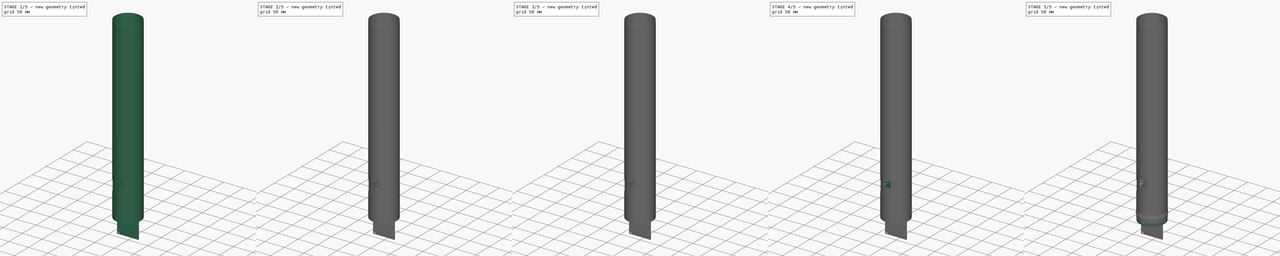
[diagram: build sequence overview — one tinted view per stage of 5, left to right]
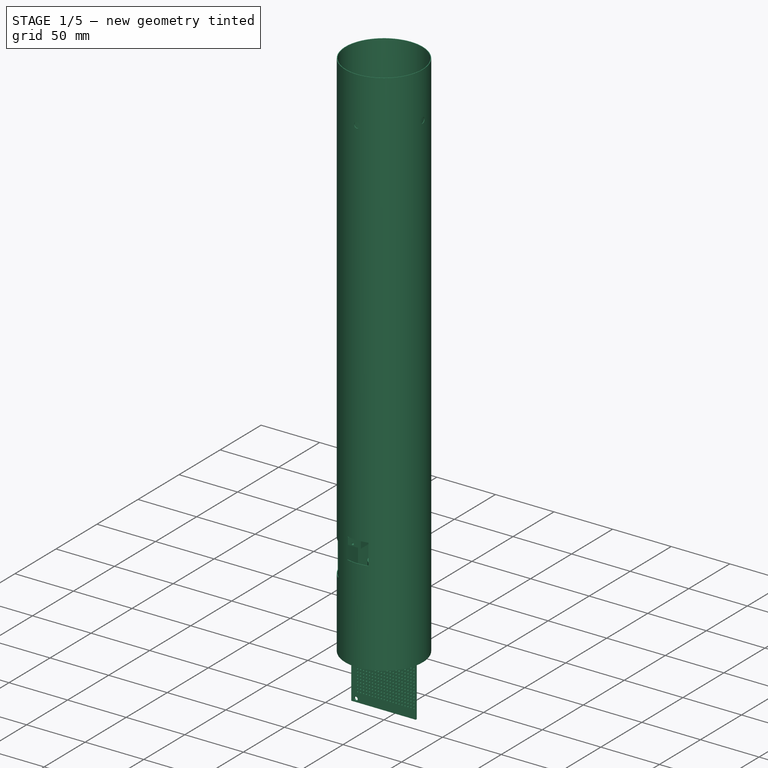
[diagram: stage 1 of 5 — iso view after this stage's code; geometry added in this stage tinted green]
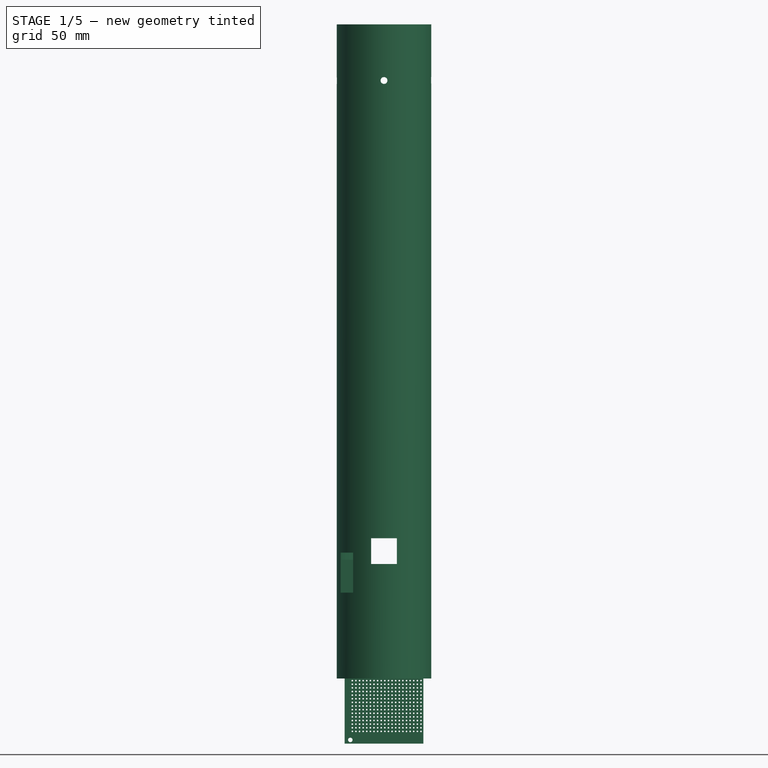
[diagram: stage 1 of 5 — front view after this stage's code; geometry added in this stage tinted green]
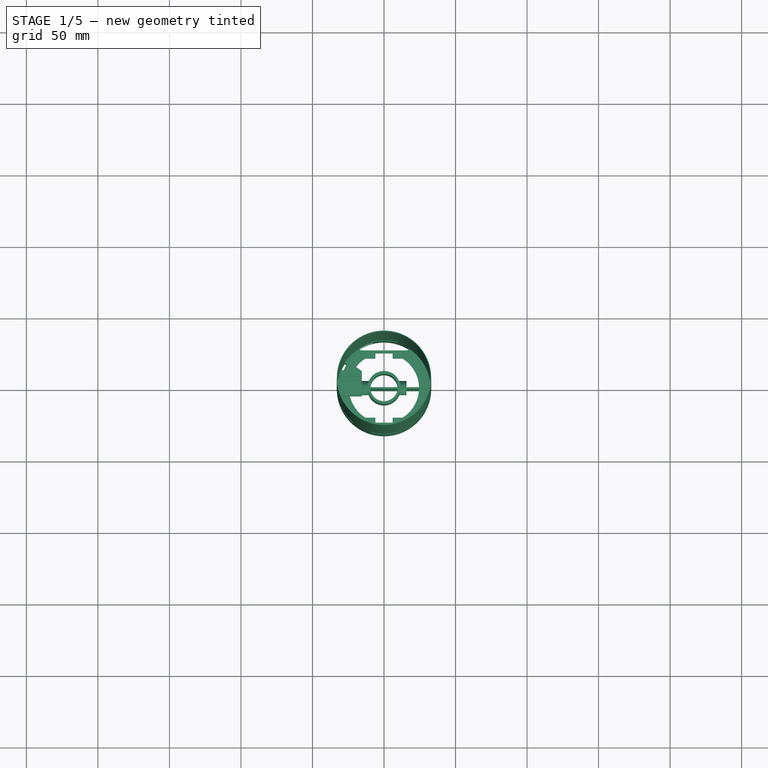
[diagram: stage 1 of 5 — top view after this stage's code; geometry added in this stage tinted green]
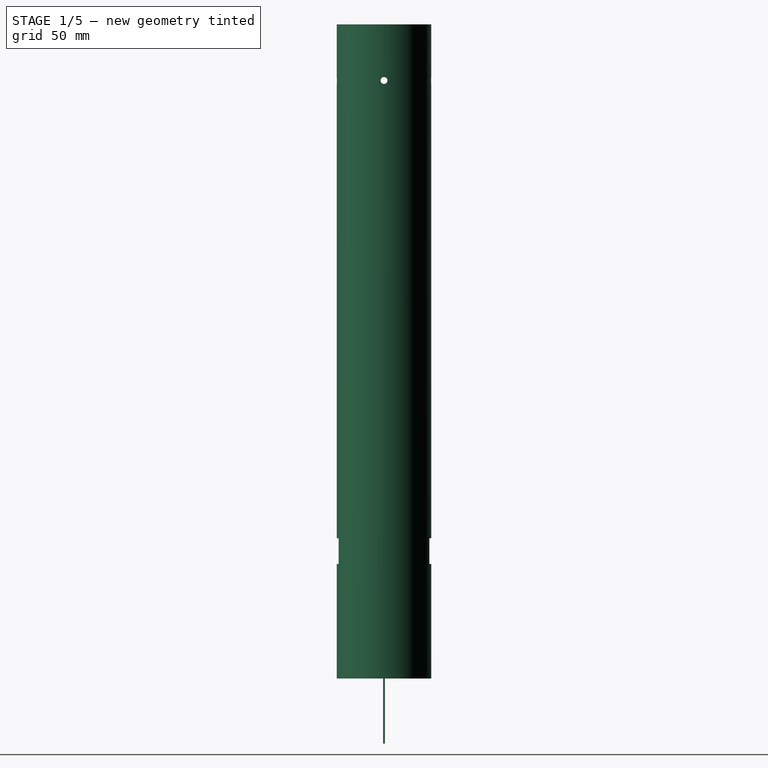
[diagram: stage 1 of 5 — right view after this stage's code; geometry added in this stage tinted green]
FCSTD DOCUMENT  (FreeCAD 0.19R23744 (Git))
Label: slider
License: CreativeCommons Attribution-NonCommercial-ShareAlike
LicenseURL: http://creativecommons.org/licenses/by-nc-sa/4.0/
objects: Sketcher::SketchObject×57, Part::Feature×33, PartDesign::Pocket×28, PartDesign::Pad×20, Part::Cylinder×16, Part::MultiFuse×16, Part::Box×14, PartDesign::Body×12, App::DocumentObjectGroup×12, App::Part×8, Part::Cut×8, PartDesign::PolarPattern×6, PartDesign::AdditiveLoft×3, Part::Part2DObjectPython×3, PartDesign::AdditivePipe×2, PartDesign::LinearPattern×2, PartDesign::Revolution×1, App::Link×1, PartDesign::MultiTransform×1
note: 276 computed .brp shape members not serialized (recipe doc carries the construction recipe); baked Part::Feature solids carry a one-line shape summary decoded from their .brp

FEATURE [Sketcher::SketchObject] Sketch006  label="Body Tube Sketch"
  FullyConstrained = true
  MapMode = 5
  Support = -> [XY_Plane004]
  sketch-geometry (2):
    g0: Circle CenterX=0 CenterY=0 CenterZ=0 NormalX=0 NormalY=0 NormalZ=1 AngleXU=0 Radius=33
    g1: Circle CenterX=0 CenterY=0 CenterZ=0 NormalX=0 NormalY=0 NormalZ=1 AngleXU=0 Radius=32.5
  constraints (4):
    c: Diameter(g0) = 66  'Outer Diameter'
    c: Diameter(g1) = 65  'Inner Diameter'
    c: Coincident(g1,g-1)  'Center1'
    c: Coincident(g1,g0)  'Center2'
FEATURE [PartDesign::Pad] Pad002  label="Body Tube Pad"
  AllowMultiFace = false
  Direction = (1,1,1)
  Length = 457.2
  Length2 = 100
  Profile = -> Sketch006
  Type = 0
FEATURE [PartDesign::Body] Body005  label="18mm x 2.75" Motor Tube"
  Group = -> [Sketch008,Pad003]
  Origin = -> Origin006
  Tip = -> Pad003
FEATURE [Sketcher::SketchObject] Sketch  label="Exhaust Vent"
  FullyConstrained = false
  MapMode = 5
  Placement = pos=(0,0,0) rot=(1,0,0;1.5708rad)
  Support = -> [XZ_Plane004]
  sketch-geometry (4):
    g0: LineSegment StartX=-9 StartY=98 StartZ=0 EndX=9 EndY=98 EndZ=0
    g1: LineSegment StartX=9 StartY=98 StartZ=0 EndX=9 EndY=80 EndZ=0
    g2: LineSegment StartX=9 StartY=80 StartZ=0 EndX=-9 EndY=80 EndZ=0
    g3: LineSegment StartX=-9 StartY=80 StartZ=0 EndX=-9 EndY=98 EndZ=0
  constraints (14):
    c: Coincident(g0,g1)
    c: Coincident(g1,g2)
    c: Coincident(g2,g3)
    c: Coincident(g3,g0)
    c: Horizontal(g0)
    c: Horizontal(g2)
    c: Vertical(g1)
    c: Vertical(g3)
    c: DistanceX(g2,g2) = 18
    c: Distance(g-1,g2) = 80
    c: Equal(g0,g3)
    c: Equal(g3,g2)
    c: Equal(g2,g1)
    c: DistanceX(g2,g-1) = 9
FEATURE [PartDesign::Pocket] Pocket
  AllowMultiFace = false
  BaseFeature = -> Pad002
  Length = 5
  Length2 = 100
  Midplane = true
  Profile = -> Sketch
  Type = 1
FEATURE [Sketcher::SketchObject] Sketch013  label="[Parachute Holding] Nose Cone Hold Down Holes"
  FullyConstrained = false
  MapMode = 5
  Placement = pos=(0,0,7) rot=(0,0,1;0rad)
  sketch-geometry (6):
    g0: Circle CenterX=-8 CenterY=0 CenterZ=0 NormalX=0 NormalY=0 NormalZ=1 AngleXU=0 Radius=2.5
    g1: Circle CenterX=8 CenterY=0 CenterZ=0 NormalX=0 NormalY=0 NormalZ=1 AngleXU=0 Radius=2.5
    g2: LineSegment StartX=-3 StartY=6 StartZ=0 EndX=3 EndY=6 EndZ=0
    g3: LineSegment StartX=3 StartY=6 StartZ=0 EndX=3 EndY=-6 EndZ=0
    g4: LineSegment StartX=3 StartY=-6 StartZ=0 EndX=-3 EndY=-6 EndZ=0
    g5: LineSegment StartX=-3 StartY=-6 StartZ=0 EndX=-3 EndY=6 EndZ=0
  constraints (16):
    c: PointOnObject(g0,g-1)
    c: Symmetric(g0,g1,g-2)
    c: Diameter(g0) = 5
    c: Diameter(g1) = 5
    c: Distance(g-1,g0) = 8
    c: Coincident(g2,g3)
    c: Coincident(g3,g4)
    c: Coincident(g4,g5)
    c: Coincident(g5,g2)
    c: Horizontal(g2)
    c: Horizontal(g4)
    c: Vertical(g3)
    c: Vertical(g5)
    c: Symmetric(g3,g2,g-1)
    c: DistanceX(g4,g4) = 6
    c: DistanceY(g3,g3) = 12
FEATURE [Sketcher::SketchObject] Sketch015  label="[Parachute Holding] Spring Mounts"
  FullyConstrained = false
  MapMode = 5
  Placement = pos=(0,0,7) rot=(0,0,1;0rad)
  sketch-geometry (4):
    g0: Circle CenterX=24 CenterY=0 CenterZ=0 NormalX=0 NormalY=0 NormalZ=1 AngleXU=0 Radius=9
    g1: Circle CenterX=-24 CenterY=0 CenterZ=0 NormalX=0 NormalY=0 NormalZ=1 AngleXU=0 Radius=8.5
    g2: Circle CenterX=24 CenterY=0 CenterZ=0 NormalX=0 NormalY=0 NormalZ=1 AngleXU=0 Radius=7
    g3: Circle CenterX=-24 CenterY=0 CenterZ=0 NormalX=0 NormalY=0 NormalZ=1 AngleXU=0 Radius=7
  constraints (9):
    c: Diameter(g0) = 18
    c: Diameter(g1) = 17
    c: Coincident(g2,g0)
    c: Diameter(g2) = 14
    c: Coincident(g3,g1)
    c: Diameter(g3) = 14
    c: Symmetric(g0,g1,g-1)
    c: PointOnObject(g0,g-1)
    c: DistanceX(g-1,g0) = 24
FEATURE [Sketcher::SketchObject] Sketch020  label="[Nose Cone] Parachute and Shock Cord Mount"
  FullyConstrained = false
  MapMode = 5
  Placement = pos=(0,0,0) rot=(1,0,0;3.14159rad)
  sketch-geometry (8):
    g0: LineSegment StartX=-5 StartY=24 StartZ=0 EndX=5 EndY=24 EndZ=0
    g1: LineSegment StartX=5 StartY=24 StartZ=0 EndX=5 EndY=20 EndZ=0
    g2: LineSegment StartX=5 StartY=20 StartZ=0 EndX=-5 EndY=20 EndZ=0
    g3: LineSegment StartX=-5 StartY=20 StartZ=0 EndX=-5 EndY=24 EndZ=0
    g4: LineSegment StartX=-5 StartY=-20 StartZ=0 EndX=5 EndY=-20 EndZ=0
    g5: LineSegment StartX=5 StartY=-20 StartZ=0 EndX=5 EndY=-24 EndZ=0
    g6: LineSegment StartX=5 StartY=-24 StartZ=0 EndX=-5 EndY=-24 EndZ=0
    g7: LineSegment StartX=-5 StartY=-24 StartZ=0 EndX=-5 EndY=-20 EndZ=0
  constraints (22):
    c: Coincident(g0,g1)
    c: Coincident(g1,g2)
    c: Coincident(g2,g3)
    c: Coincident(g3,g0)
    c: Vertical(g1)
    c: Coincident(g4,g5)
    c: Coincident(g5,g6)
    c: Coincident(g6,g7)
    c: Coincident(g7,g4)
    c: Horizontal(g4)
    c: Vertical(g5)
    c: Equal(g7,g5)
    c: Equal(g5,g3)
    c: Equal(g3,g1)
    c: Equal(g0,g2)
    c: Equal(g2,g4)
    c: Equal(g4,g6)
    c: Symmetric(g2,g4,g-1)
    c: DistanceX(g2,g2) = 10
    c: DistanceY(g1,g1) = 4
    c: DistanceY(g2) = 20
    c: Symmetric(g2,g1,g-2)
FEATURE [Part::Feature] Part__Feature006  label="M5 Threaded Insert (94180A361) 001"
  Placement = pos=(0,32,0) rot=(0,0,1;0rad)
  shape: bbox 8.33 x 7.35 x 8.33 mm, 259 faces (baked)
FEATURE [Part::Feature] Part__Feature007  label="M5 Threaded Insert (94180A361) 002"
  Placement = pos=(0,-32,0) rot=(0,0,1;3.14159rad)
  shape: bbox 8.33 x 7.35 x 8.33 mm, 259 faces (baked)
FEATURE [Part::Feature] Part__Feature008  label="M5 Threaded Insert (94180A361) 003"
  Placement = pos=(-32,0,0) rot=(0,0,1;1.5708rad)
  shape: bbox 7.35 x 8.33 x 8.33 mm, 259 faces (baked)
FEATURE [Part::Feature] Part__Feature009  label="M5 Threaded Insert (94180A361) 004"
  Placement = pos=(32,0,0) rot=(0,0,-1;1.5708rad)
  shape: bbox 7.35 x 8.33 x 8.33 mm, 259 faces (baked)
FEATURE [Part::Feature] Part__Feature010  label="M5 Screw (91239A220) 001"
  Placement = pos=(0,35.5,0) rot=(-1,0,0;1.5708rad)
  shape: bbox 9.501 x 9.68 x 9.501 mm, 56 faces (baked)
FEATURE [Part::Feature] Part__Feature011  label="M5 Screw (91239A220) 002"
  Placement = pos=(0,-35.5,0) rot=(1,0,0;1.5708rad)
  shape: bbox 9.501 x 9.68 x 9.501 mm, 56 faces (baked)
FEATURE [Part::Feature] Part__Feature012  label="M5 Screw (91239A220) 003"
  Placement = pos=(35.5,0,0) rot=(0,1,0;1.5708rad)
  shape: bbox 9.68 x 9.501 x 9.501 mm, 56 faces (baked)
FEATURE [Part::Feature] Part__Feature013  label="M5 Screw (91239A220) 004"
  Placement = pos=(-35.5,0,0) rot=(0,-1,0;1.5708rad)
  shape: bbox 9.68 x 9.501 x 9.501 mm, 56 faces (baked)
FEATURE [App::DocumentObjectGroup] Group  label="M5 Threaded Inserts"
  Group = -> [Part__Feature006,Part__Feature007,Part__Feature008,Part__Feature009]
FEATURE [App::DocumentObjectGroup] Group001  label="M5 Screws"
  Group = -> [Part__Feature010,Part__Feature011,Part__Feature012,Part__Feature013]
FEATURE [Sketcher::SketchObject] Sketch022  label="M5 Parachute Mounting Holes"
  FullyConstrained = false
  MapMode = 5
  Placement = pos=(0,0,0) rot=(1,0,0;1.5708rad)
  Support = -> [XZ_Plane004]
  sketch-geometry (1):
    g0: Circle CenterX=0 CenterY=418 CenterZ=0 NormalX=0 NormalY=0 NormalZ=1 AngleXU=0 Radius=2.4
  constraints (3):
    c: Diameter(g0) = 4.8
    c: PointOnObject(g0,g-2)
    c: DistanceY(g0) = 418
FEATURE [PartDesign::Pocket] Pocket010
  AllowMultiFace = false
  BaseFeature = -> Pocket
  Length = 5
  Length2 = 100
  Profile = -> Sketch022
  Type = 1
FEATURE [PartDesign::PolarPattern] PolarPattern001
  Angle = 360
  Axis = -> Sketch022 [V_Axis]
  BaseFeature = -> Pocket010
  Occurrences = 4
  Originals = -> [Pocket010]
FEATURE [PartDesign::Body] Body003  label="Nose Cone"
  Group = -> [Sketch007,Revolution001,Sketch020,Pad006,Sketch021,Pocket007,Sketch026,Pad010,Sketch027,Pocket015]
  Origin = -> Origin004
  Tip = -> Pocket015
FEATURE [App::Part] Part  label="Nose Cone Assembly"
  Group = -> [Body003]
  Origin = -> Origin008
  Placement = pos=(0,0,448) rot=(0,0,1;0rad)
FEATURE [Sketcher::SketchObject] Sketch028  label="[Center Motor Gimbal] Motor Tube Mount"
  FullyConstrained = false
  MapMode = 5
  Support = -> [XY_Plane010]
  sketch-geometry (2):
    g0: Circle CenterX=0 CenterY=0 CenterZ=0 NormalX=0 NormalY=0 NormalZ=1 AngleXU=0 Radius=9.6
    g1: Circle CenterX=0 CenterY=0 CenterZ=0 NormalX=0 NormalY=0 NormalZ=1 AngleXU=0 Radius=11.5
  constraints (4):
    c: Coincident(g0,g-1)
    c: Coincident(g1,g0)
    c: Diameter(g0) = 19.2
    c: Diameter(g1) = 23
FEATURE [PartDesign::Pad] Pad011
  AllowMultiFace = false
  Direction = (1,1,1)
  Length = 70
  Length2 = 100
  Profile = -> Sketch028
  Type = 0
FEATURE [Sketcher::SketchObject] Sketch030  label="[Center Gimbal] Axis Of Rotation"
  FullyConstrained = false
  MapMode = 5
  Placement = pos=(-10,0,0) rot=(0.57735,-0.57735,-0.57735;2.0944rad)
  sketch-geometry (2):
    g0: Circle CenterX=0 CenterY=40 CenterZ=0 NormalX=0 NormalY=0 NormalZ=1 AngleXU=0 Radius=5
    g1: Circle CenterX=0 CenterY=40 CenterZ=0 NormalX=0 NormalY=0 NormalZ=1 AngleXU=0 Radius=2.6
  constraints (5):
    c: PointOnObject(g0,g-2)
    c: Coincident(g0,g1)
    c: DistanceY(g-1,g0) = 40
    c: Diameter(g1) = 5.2
    c: Diameter(g0) = 10
FEATURE [PartDesign::Pad] Pad013
  AllowMultiFace = false
  BaseFeature = -> Pad011
  Direction = (1,1,1)
  Length = 5.7
  Length2 = 100
  Profile = -> Sketch030
  Type = 0
FEATURE [PartDesign::PolarPattern] PolarPattern003
  Angle = 360
  Axis = -> Z_Axis010
  BaseFeature = -> Pad013
  Occurrences = 2
  Originals = -> [Pad013]
FEATURE [PartDesign::Pad] Pad022
  Direction = (1,1,1)
  Length = 8
  Length2 = 5
  Midplane = true
  Profile = -> Sketch044
  Type = 4
FEATURE [Sketcher::SketchObject] Sketch046  label="[Center Gimbal] Screw Holes"
  FullyConstrained = false
  MapMode = 5
  Placement = pos=(0,0,0) rot=(0.57735,0.57735,0.57735;2.0944rad)
  Support = -> [YZ_Plane010]
  sketch-geometry (1):
    g0: Circle CenterX=0 CenterY=40 CenterZ=0 NormalX=0 NormalY=0 NormalZ=1 AngleXU=0 Radius=1.7
  constraints (3):
    c: PointOnObject(g0,g-2)
    c: Diameter(g0) = 3.4
    c: DistanceY(g0) = 40
FEATURE [PartDesign::Pocket] Pocket020
  BaseFeature = -> PolarPattern003
  Length = 5
  Length2 = 100
  Midplane = true
  Profile = -> Sketch046
  Type = 1
FEATURE [Sketcher::SketchObject] Sketch049  label="[Outer Gimbal] Middle Gimbal Screw Holes"
  FullyConstrained = false
  MapMode = 5
  Placement = pos=(0,0,0) rot=(1,0,0;1.5708rad)
  Support = -> [XZ_Plane012]
  sketch-geometry (1):
    g0: Circle CenterX=0 CenterY=40 CenterZ=0 NormalX=0 NormalY=0 NormalZ=1 AngleXU=0 Radius=1.7
  constraints (3):
    c: PointOnObject(g0,g-2)
    c: Diameter(g0) = 3.4
    c: DistanceY(g0) = 40
FEATURE [PartDesign::Pocket] Pocket023
  BaseFeature = -> Pad022
  Length = 5
  Length2 = 100
  Midplane = true
  Profile = -> Sketch049
  Type = 1
FEATURE [Sketcher::SketchObject] Sketch056  label="[Body Tube] Middle Motor Gimbal Servo Cutout"
  AttachmentOffset = pos=(0,0,-33) rot=(0,1,0;3.14159rad)
  FullyConstrained = false
  MapMode = 5
  Placement = pos=(0,33,7.3e-15) rot=(0,0.707107,0.707107;3.14159rad)
  Support = -> [XZ_Plane004]
  sketch-geometry (4):
    g0: LineSegment StartX=8 StartY=46 StartZ=0 EndX=23 EndY=46 EndZ=0
    g1: LineSegment StartX=23 StartY=46 StartZ=0 EndX=23 EndY=8 EndZ=0
    g2: LineSegment StartX=23 StartY=8 StartZ=0 EndX=8 EndY=8 EndZ=0
    g3: LineSegment StartX=8 StartY=8 StartZ=0 EndX=8 EndY=46 EndZ=0
  constraints (12):
    c: Coincident(g0,g1)
    c: Coincident(g1,g2)
    c: Coincident(g2,g3)
    c: Coincident(g3,g0)
    c: Horizontal(g0)
    c: Horizontal(g2)
    c: Vertical(g1)
    c: Vertical(g3)
    c: DistanceY(g3,g3) = 38
    c: DistanceX(g0,g0) = 15
    c: DistanceX(g2) = 8
    c: DistanceY(g2) = 8
FEATURE [PartDesign::Pocket] Pocket026
  BaseFeature = -> PolarPattern001
  Length = 15
  Length2 = 100
  Profile = -> Sketch056
  Type = 0
FEATURE [Sketcher::SketchObject] Sketch062  label="[Outer Gimbal] Servo Mount"
  FullyConstrained = false
  MapMode = 5
  Placement = pos=(0,0,48) rot=(0,0,1;0rad)
  Support = -> [Pocket023]
  sketch-geometry (4):
    g0: LineSegment StartX=-26.3676 StartY=19 StartZ=0 EndX=-15.5 EndY=11.169 EndZ=0
    g1: LineSegment StartX=-15.5 StartY=11.169 StartZ=0 EndX=-15.5 EndY=-6 EndZ=0
    g2: LineSegment StartX=-15.5 StartY=-6 StartZ=0 EndX=-31.9414 EndY=-6 EndZ=0
    g3: ArcOfCircle CenterX=0 CenterY=0 CenterZ=0 NormalX=0 NormalY=0 NormalZ=1 AngleXU=0 Radius=32.5 StartAngle=2.51719 EndAngle=3.32727
  constraints (12):
    c: Coincident(g0,g1)
    c: Coincident(g1,g2)
    c: Horizontal(g2)
    c: Coincident(g3,g0)
    c: Coincident(g3,g2)
    c: Diameter(g3) = 65
    c: Vertical(g1)
    c: DistanceX(g0,g-1) = 15.5
    c: DistanceY(g1) = -6
    c: Coincident(g3,g-1)
    c: DistanceY(g2,g0) = 25
    c: Perpendicular(g3,g0)
FEATURE [PartDesign::Pad] Pad026
  BaseFeature = -> Pocket023
  Direction = (1,1,1)
  Length = 35
  Length2 = 100
  Profile = -> Sketch062
  Type = 0
FEATURE [Sketcher::SketchObject] Sketch063  label="[Outer Gimbal] Servo Cutout"
  FullyConstrained = false
  MapMode = 5
  Placement = pos=(0,-6,0) rot=(1,0,0;1.5708rad)
  Support = -> [Pad026]
  sketch-geometry (4):
    g0: LineSegment StartX=-29.5 StartY=77 StartZ=0 EndX=-15.5 EndY=77 EndZ=0
    g1: LineSegment StartX=-15.5 StartY=77 StartZ=0 EndX=-15.5 EndY=53 EndZ=0
    g2: LineSegment StartX=-15.5 StartY=53 StartZ=0 EndX=-29.5 EndY=53 EndZ=0
    g3: LineSegment StartX=-29.5 StartY=53 StartZ=0 EndX=-29.5 EndY=77 EndZ=0
  constraints (12):
    c: Coincident(g0,g1)
    c: Coincident(g1,g2)
    c: Coincident(g2,g3)
    c: Coincident(g3,g0)
    c: Horizontal(g0)
    c: Horizontal(g2)
    c: Vertical(g1)
    c: Vertical(g3)
    c: DistanceX(g2,g2) = 14
    c: DistanceY(g1,g1) = 24
    c: DistanceX(g1) = -15.5
    c: DistanceY(g1) = 53
FEATURE [PartDesign::Pocket] Pocket031
  BaseFeature = -> Pad026
  Length = 16.5
  Length2 = 100
  Profile = -> Sketch063
  Type = 0
FEATURE [Sketcher::SketchObject] Sketch064  label="[Middle Gimbal] Outer Gimbal Servo Connection 1"
  FullyConstrained = false
  MapMode = 5
  Placement = pos=(0,0,45) rot=(0,0,1;0rad)
  Support = -> [Pocket030]
  sketch-geometry (4):
    g0: ArcOfCircle CenterX=0 CenterY=0 CenterZ=0 NormalX=0 NormalY=0 NormalZ=1 AngleXU=0 Radius=19 StartAngle=4.33508 EndAngle=5.0897
    g1: ArcOfCircle CenterX=0 CenterY=0 CenterZ=0 NormalX=0 NormalY=0 NormalZ=1 AngleXU=0 Radius=14.5 StartAngle=4.20859 EndAngle=5.21619
    g2: LineSegment StartX=-7 StartY=-17.6635 StartZ=0 EndX=-7 EndY=-12.6984 EndZ=0
    g3: LineSegment StartX=7 StartY=-17.6635 StartZ=0 EndX=7 EndY=-12.6984 EndZ=0
  constraints (12):
    c: Coincident(g0,g-1)
    c: Coincident(g1,g0)
    c: Radius(g1) = 14.5
    c: Radius(g0) = 19
    c: Coincident(g2,g0)
    c: Vertical(g2)
    c: Coincident(g3,g0)
    c: Vertical(g3)
    c: Coincident(g3,g1)
    c: Coincident(g1,g2)
    c: Symmetric(g0,g0,g-2)
    c: DistanceX(g1) = 7
FEATURE [Sketcher::SketchObject] Sketch066  label="[Outer Gimbal] Servo Wires Cutout"
  FullyConstrained = false
  MapMode = 5
  Placement = pos=(0,0,83) rot=(0,0,1;0rad)
  sketch-geometry (4):
    g0: LineSegment StartX=-26 StartY=7.5 StartZ=0 EndX=-14 EndY=7.5 EndZ=0
    g1: LineSegment StartX=-14 StartY=7.5 StartZ=0 EndX=-14 EndY=3.5 EndZ=0
    g2: LineSegment StartX=-14 StartY=3.5 StartZ=0 EndX=-26 EndY=3.5 EndZ=0
    g3: LineSegment StartX=-26 StartY=3.5 StartZ=0 EndX=-26 EndY=7.5 EndZ=0
  constraints (12):
    c: Coincident(g0,g1)
    c: Coincident(g1,g2)
    c: Coincident(g2,g3)
    c: Coincident(g3,g0)
    c: Horizontal(g0)
    c: Horizontal(g2)
    c: Vertical(g1)
    c: Vertical(g3)
    c: DistanceX(g0,g0) = 12
    c: DistanceY(g1,g1) = 4
    c: DistanceY(g1) = 3.5
    c: DistanceX(g2) = -26
FEATURE [PartDesign::Pocket] Pocket033
  BaseFeature = -> Pocket031
  Length = 6
  Length2 = 100
  Profile = -> Sketch066
  Type = 0
FEATURE [Sketcher::SketchObject] Sketch067  label="[Middle Gimbal] Outer Gimbal Servo Connection 2"
  AttachmentOffset = pos=(0,0,15) rot=(0,0,1;0rad)
  FullyConstrained = false
  MapMode = 5
  Placement = pos=(0,0,60) rot=(0,0,1;0rad)
  Support = -> [Pocket030]
  sketch-geometry (9):
    g0: Circle CenterX=0 CenterY=0 CenterZ=0 NormalX=0 NormalY=0 NormalZ=1 AngleXU=0 Radius=14.5
    g1: LineSegment StartX=-7 StartY=-14.5 StartZ=0 EndX=7 EndY=-14.5 EndZ=0
    g2: LineSegment StartX=-7 StartY=-15.5 StartZ=0 EndX=7 EndY=-15.5 EndZ=0
    g3: LineSegment StartX=7 StartY=-15.5 StartZ=0 EndX=7 EndY=-19 EndZ=0
    g4: LineSegment StartX=-7 StartY=-19 StartZ=0 EndX=-7 EndY=-15.5 EndZ=0
    g5: LineSegment StartX=-7 StartY=-19 StartZ=0 EndX=7 EndY=-19 EndZ=0
    g6: LineSegment StartX=7 StartY=-15.5 StartZ=0 EndX=7 EndY=-14.5 EndZ=0
    g7: LineSegment StartX=-7 StartY=-15.5 StartZ=0 EndX=-7 EndY=-14.5 EndZ=0
    g8: Circle CenterX=0 CenterY=0 CenterZ=0 NormalX=0 NormalY=0 NormalZ=1 AngleXU=0 Radius=19
  constraints (23):
    c: Coincident(g0,g-1)
    c: Radius(g0) = 14.5
    c: Tangent(g1,g0)
    c: Symmetric(g1,g1,g-2)
    c: Coincident(g2,g3)
    c: Coincident(g4,g2)
    c: Horizontal(g2)
    c: Vertical(g3)
    c: Vertical(g4)
    c: Coincident(g5,g4)
    c: Coincident(g5,g3)
    c: Horizontal(g5)
    c: DistanceY(g2,g1) = 1
    c: DistanceX(g1,g1) = 14
    c: Coincident(g6,g2)
    c: Coincident(g6,g1)
    c: Vertical(g6)
    c: Coincident(g7,g2)
    c: Coincident(g7,g1)
    c: Vertical(g7)
    c: Coincident(g8,g-1)
    c: Radius(g8) = 19
    c: Tangent(g5,g8)
FEATURE [Sketcher::SketchObject] Sketch068  label="[Outer Gimbal] Server Screws Cutout"
  FullyConstrained = false
  MapMode = 5
  Placement = pos=(0,-6,0) rot=(1,0,0;1.5708rad)
  Support = -> [Pocket033]
  sketch-geometry (3):
    g0: Circle CenterX=-22.5 CenterY=78.8 CenterZ=0 NormalX=0 NormalY=0 NormalZ=1 AngleXU=0 Radius=0.9
    g1: Circle CenterX=-22.5 CenterY=51.2 CenterZ=0 NormalX=0 NormalY=0 NormalZ=1 AngleXU=0 Radius=0.9
    g2: LineSegment StartX=-22.5 StartY=51.2 StartZ=0 EndX=-22.5 EndY=78.8 EndZ=0
  constraints (8):
    c: Coincident(g2,g1)
    c: Coincident(g2,g0)
    c: Vertical(g2)
    c: Diameter(g1) = 1.8
    c: Diameter(g0) = 1.8
    c: DistanceY(g2,g2) = 27.6
    c: DistanceX(g1) = -22.5
    c: DistanceY(g1) = 51.2
FEATURE [PartDesign::Pocket] Pocket034
  BaseFeature = -> Pocket033
  Length = 7
  Length2 = 100
  Profile = -> Sketch068
  Type = 0
FEATURE [PartDesign::Body] Body011  label="[Middle Gimbal] Servo Pushrod"
  Group = -> [Sketch072,Sketch071,AdditivePipe001]
  Origin = -> Origin018
  Placement = pos=(19.65,0.95,11.65) rot=(0.707107,-0.707107,0;3.14159rad)
  Tip = -> AdditivePipe001
FEATURE [Part::Part2DObjectPython] ShapeString  label="Up Shape"  # Draft 2D object (typed FeaturePython)
  FontFile = <path>
  Placement = pos=(-3,-26.5,44) rot=(1,0,0;1.5708rad)
  Size = 1.5
  String = UP
  Tracking = 0
FEATURE [PartDesign::Pocket] Pocket035
  BaseFeature = -> Pocket034
  Length = 1
  Length2 = 100
  Profile = -> ShapeString
  Type = 0
FEATURE [PartDesign::Body] Body  label="Center Gimbal"
  Group = -> [Sketch028,Pad011,Sketch030,Pad013,PolarPattern003,Sketch046,Pocket020,Sketch053,Pad023,ShapeString002,Pocket037,Sketch081,Sketch082,AdditiveLoft002,Sketch083,Pocket041]
  Origin = -> Origin010
  Tip = -> Pocket041
FEATURE [App::Part] Part003  label="Center Motor Gimbal"
  Group = -> [Body,Group006,Part__Feature019,Part__Feature020,Part__Feature021,Group007,Part__Feature022,Link001]
  Origin = -> Origin014
FEATURE [Sketcher::SketchObject] Sketch084  label="[Outer Gimbal] M5 Insert"
  AttachmentOffset = pos=(23,0,23) rot=(0,1,0;0.785398rad)
  FullyConstrained = false
  MapMode = 5
  Placement = pos=(23,23,0) rot=(0.281085,0.678598,0.678598;2.59356rad)
  Support = -> [YZ_Plane012]
  sketch-geometry (1):
    g0: Circle CenterX=0 CenterY=41.5 CenterZ=0 NormalX=0 NormalY=0 NormalZ=1 AngleXU=0 Radius=3.9
  constraints (3):
    c: PointOnObject(g0,g-2)
    c: DistanceY(g0) = 41.5
    c: Diameter(g0) = 7.8
FEATURE [PartDesign::Pocket] Pocket042
  BaseFeature = -> Pocket035
  Length = 10.01
  Length2 = 100
  Profile = -> Sketch084
  Type = 0
FEATURE [PartDesign::PolarPattern] PolarPattern006
  Angle = 360
  Axis = -> Z_Axis012
  BaseFeature = -> Pocket042
  Occurrences = 4
  Originals = -> [Pocket042]
FEATURE [Sketcher::SketchObject] Sketch065  label="[Outer Gimbal] Middle Gimbal Wires Cutout"
  FullyConstrained = false
  MapMode = 5
  Placement = pos=(0,0,83) rot=(0,0,1;0rad)
  Support = -> [PolarPattern006]
  sketch-geometry (7):
    g0: LineSegment StartX=-27.8227 StartY=16.9822 StartZ=0 EndX=-26.0407 EndY=16.0742 EndZ=0
    g1: LineSegment StartX=-26.0407 StartY=16.0742 StartZ=0 EndX=-28.3107 EndY=11.6192 EndZ=0
    g2: LineSegment StartX=-28.3107 StartY=11.6192 StartZ=0 EndX=-30.0927 EndY=12.5272 EndZ=0
    g3: LineSegment StartX=-30.0927 StartY=12.5272 StartZ=0 EndX=-27.8227 EndY=16.9822 EndZ=0
    g4: Circle CenterX=0 CenterY=0 CenterZ=0 NormalX=0 NormalY=0 NormalZ=1 AngleXU=0 Radius=32.5
    g5: LineSegment StartX=-28.9577 StartY=14.7547 StartZ=0 EndX=-27.1757 EndY=13.8467 EndZ=0
    g6: LineSegment StartX=-27.1757 StartY=13.8467 StartZ=0 EndX=0 EndY=0 EndZ=0
  constraints (19):
    c: Coincident(g0,g1)
    c: Coincident(g1,g2)
    c: Coincident(g2,g3)
    c: Coincident(g3,g0)
    c: Distance(g3) = 5
    c: Distance(g0) = 2
    c: Perpendicular(g2,g1)
    c: Perpendicular(g3,g2)
    c: Perpendicular(g0,g1)
    c: Coincident(g4,g-1)
    c: Diameter(g4) = 65
    c: Tangent(g3,g4)
    c: PointOnObject(g5,g1)
    c: Perpendicular(g3,g5)
    c: Symmetric(g0,g2,g5)
    c: Perpendicular(g4,g5)
    c: Coincident(g6,g5)
    c: Coincident(g6,g-1)
    c: Angle(g-2,g6) = 1.09956
FEATURE [PartDesign::Pocket] Pocket043
  BaseFeature = -> PolarPattern006
  Length = 5
  Length2 = 100
  Profile = -> Sketch065
  Type = 1
FEATURE [PartDesign::Body] Body008  label="Outer Gimbal"
  Group = -> [Sketch044,Pad022,Sketch049,Pocket023,Sketch062,Pad026,Sketch063,Pocket031,Sketch066,Pocket033,Sketch068,Pocket034,Sketch065,ShapeString,Pocket035,Sketch084,Pocket042,PolarPattern006,Pocket043]
  Origin = -> Origin012
  Tip = -> Pocket043
FEATURE [Part::Feature] Part__Feature027  label="M5 Threaded Insert (94180A361) 005"
  Placement = pos=(-22.94,22.94,41.5) rot=(0,0,1;0.785398rad)
  shape: bbox 10.41 x 10.41 x 8.33 mm, 259 faces (baked)
FEATURE [Part::Feature] Part__Feature028  label="M5 Threaded Insert (94180A361) 006"
  Placement = pos=(-22.9393,-22.9393,41.5) rot=(0,0,1;2.35619rad)
  shape: bbox 10.41 x 10.41 x 8.33 mm, 259 faces (baked)
FEATURE [Part::Feature] Part__Feature029  label="M5 Threaded Insert (94180A361) 007"
  Placement = pos=(22.94,-22.94,41.5) rot=(0,0,1;3.92699rad)
  shape: bbox 10.41 x 10.41 x 8.33 mm, 259 faces (baked)
FEATURE [Part::Feature] Part__Feature030  label="M5 Threaded Insert (94180A361) 008"
  Placement = pos=(22.94,22.94,41.5) rot=(0,0,-1;0.785398rad)
  shape: bbox 10.41 x 10.41 x 8.33 mm, 259 faces (baked)
FEATURE [App::DocumentObjectGroup] Group011  label="M5 Threaded Inserts001"
  Group = -> [Part__Feature028,Part__Feature030,Part__Feature029,Part__Feature027]
FEATURE [Part::Feature] Part__Feature031  label="M5 Screw (91239A220) 005"
  Placement = pos=(25.0613,25.0613,41.5) rot=(-0.862856,0.357407,-0.357407;1.71777rad)
  shape: bbox 9.772 x 10.05 x 9.501 mm, 56 faces (baked)
FEATURE [Part::Feature] Part__Feature032  label="M5 Screw (91239A220) 006"
  Placement = pos=(25.06,-25.06,41.5) rot=(0.862856,0.357407,0.357407;1.71777rad)
  shape: bbox 9.772 x 10.05 x 9.501 mm, 56 faces (baked)
FEATURE [Part::Feature] Part__Feature033  label="M5 Screw (91239A220) 007"
  Placement = pos=(-25.06,25.06,41.5) rot=(-0.678598,0.281085,0.678598;2.59356rad)
  shape: bbox 10.16 x 9.913 x 9.501 mm, 56 faces (baked)
FEATURE [Part::Feature] Part__Feature034  label="M5 Screw (91239A220) 008"
  Placement = pos=(-25.06,-25.06,41.5) rot=(0.357407,-0.862856,0.357407;1.71777rad)
  shape: bbox 10.16 x 9.913 x 9.501 mm, 56 faces (baked)
FEATURE [App::DocumentObjectGroup] Group012  label="M5 Screws001"
  Group = -> [Part__Feature031,Part__Feature032,Part__Feature033,Part__Feature034]
FEATURE [App::Part] Part005  label="Outer Motor Gimbal"
  Group = -> [Box013,Cut005,Box008,Cylinder013,Fusion016,Fusion011,Cylinder011,Fusion013,Box012,Fusion014,Cylinder012,Cut007,Box009,Fusion017,Cut004,Box010,Box011,Cylinder010,Cut006,Fusion012,Box007,Cylinder009,Cylinder008,Cylinder014,Cylinder015,Fusion015,Fusion018,Group003,Body008,Part__Feature017,Body010,Group011,Part__Feature028,Part__Feature030,Part__Feature029,Part__Feature027,Part__Feature034,+4 more]
  Origin = -> Origin016
FEATURE [App::Part] Part002  label="Motor Mount"
  Group = -> [Group005,Body009,Body005,Part003,Part004,Part005]
  Origin = -> Origin
  Placement = pos=(0,0,11) rot=(0,0,1;0rad)
FEATURE [Sketcher::SketchObject] Sketch085  label="[Body Tube] Outer Motor Gimbal Servo Cutout"
  FullyConstrained = false
  MapMode = 5
  Placement = pos=(0,0,0) rot=(0.57735,0.57735,0.57735;2.0944rad)
  Support = -> [YZ_Plane004]
  sketch-geometry (4):
    g0: LineSegment StartX=-13 StartY=88 StartZ=0 EndX=-25 EndY=88 EndZ=0
    g1: LineSegment StartX=-25 StartY=88 StartZ=0 EndX=-25 EndY=60 EndZ=0
    g2: LineSegment StartX=-25 StartY=60 StartZ=0 EndX=-13 EndY=60 EndZ=0
    g3: LineSegment StartX=-13 StartY=60 StartZ=0 EndX=-13 EndY=88 EndZ=0
  constraints (12):
    c: Coincident(g0,g1)
    c: Coincident(g1,g2)
    c: Coincident(g2,g3)
    c: Coincident(g3,g0)
    c: Horizontal(g0)
    c: Horizontal(g2)
    c: Vertical(g1)
    c: Vertical(g3)
    c: DistanceX(g2) = -13
    c: DistanceY(g2) = 60
    c: DistanceX(g0,g0) = 12
    c: DistanceY(g1,g1) = 28
FEATURE [PartDesign::Pocket] Pocket044
  BaseFeature = -> Pocket026
  Length = 5
  Length2 = 100
  Profile = -> Sketch085
  Type = 1
FEATURE [PartDesign::Body] Body004  label="66mm x 18" Body Tube"
  Group = -> [Sketch006,Pad002,Sketch,Pocket,Sketch022,Pocket010,PolarPattern001,Sketch056,Pocket026,Sketch085,Pocket044]
  Origin = -> Origin005
  Tip = -> Pocket044
FEATURE [Sketcher::SketchObject] Sketch086  label="[Perf Board] Layout"
  FullyConstrained = true
  MapMode = 5
  Placement = pos=(0,0,0) rot=(1,0,0;1.5708rad)
  Support = -> [XZ_Plane022]
  sketch-geometry (10):
    g0: LineSegment StartX=-27.5 StartY=45.5 StartZ=0 EndX=27.5 EndY=45.5 EndZ=0
    g1: LineSegment StartX=27.5 StartY=45.5 StartZ=0 EndX=27.5 EndY=-45.5 EndZ=0
    g2: LineSegment StartX=27.5 StartY=-45.5 StartZ=0 EndX=-27.5 EndY=-45.5 EndZ=0
    g3: LineSegment StartX=-27.5 StartY=-45.5 StartZ=0 EndX=-27.5 EndY=45.5 EndZ=0
    g4: LineSegment StartX=-27.5 StartY=41.05 StartZ=0 EndX=-25.1 EndY=41.05 EndZ=0
    g5: LineSegment StartX=-23.55 StartY=45.5 StartZ=0 EndX=-23.55 EndY=42.6 EndZ=0
    g6: Circle CenterX=-23.55 CenterY=41.05 CenterZ=0 NormalX=0 NormalY=0 NormalZ=1 AngleXU=0 Radius=1.55
    g7: Circle CenterX=-23.55 CenterY=-42.95 CenterZ=0 NormalX=0 NormalY=0 NormalZ=1 AngleXU=0 Radius=1.55
    g8: LineSegment StartX=-23.55 StartY=-44.5 StartZ=0 EndX=-23.55 EndY=-45.5 EndZ=0
    g9: LineSegment StartX=-25.1 StartY=-42.95 StartZ=0 EndX=-27.5 EndY=-42.95 EndZ=0
  constraints (33):
    c: Coincident(g0,g1)
    c: Coincident(g1,g2)
    c: Coincident(g2,g3)
    c: Coincident(g3,g0)
    c: Horizontal(g0)
    c: Horizontal(g2)
    c: Vertical(g1)
    c: Vertical(g3)
    c: Symmetric(g1,g0,g-1)
    c: DistanceX(g2,g2) = 55
    c: DistanceY(g1,g1) = 91
    c: Horizontal(g4)
    c: PointOnObject(g5,g0)
    c: Vertical(g5)
    c: DistanceY(g5,g5) = 2.9
    c: Diameter(g6) = 3.1
    c: PointOnObject(g5,g6)
    c: Diameter(g7) = 3.1
    c: PointOnObject(g8,g7)
    c: PointOnObject(g8,g2)
    c: Vertical(g8)
    c: DistanceY(g8,g8) = 1
    c: PointOnObject(g9,g7)
    c: Horizontal(g9)
    c: DistanceX(g9,g9) = 2.4
    c: PointOnObject(g9,g3)
    c: PointOnObject(g4,g3)
    c: DistanceX(g4,g4) = 2.4
    c: PointOnObject(g4,g6)
    c: Perpendicular(g6,g5)
    c: Perpendicular(g6,g4)
    c: Perpendicular(g7,g9)
    c: Perpendicular(g7,g8)
FEATURE [PartDesign::Pad] Pad030
  Direction = (1,1,1)
  Length = 1.3
  Length2 = 100
  Midplane = true
  Placement = pos=(0,0,0) rot=(1,0,0;1.5708rad)
  Profile = -> Sketch086
  Type = 0
FEATURE [Part::Feature] Part__Feature035  label="mps_dcdc_oki_78sr_a"
  Placement = pos=(10.25,-3,34) rot=(1,0,0;3.14159rad)
  shape: bbox 10.41 x 19.81 x 7.734 mm, 253 faces, 0 solids (baked)
FEATURE [Sketcher::SketchObject] Sketch087  label="[Perf Board] PC Holes"
  ExternalGeometry = -> [Pad030]
  FullyConstrained = true
  MapMode = 5
  Placement = pos=(0,-0.65,-1e-16) rot=(1,0,0;1.5708rad)
  Support = -> [Pad030]
  sketch-geometry (6):
    g0: LineSegment StartX=-23.75 StartY=38.3 StartZ=0 EndX=27.5 EndY=38.3 EndZ=0
    g1: LineSegment StartX=27.5 StartY=-39 StartZ=0 EndX=-23.75 EndY=-39 EndZ=0
    g2: LineSegment StartX=-23.75 StartY=-39 StartZ=0 EndX=-23.75 EndY=38.3 EndZ=0
    g3: Circle CenterX=-22.15 CenterY=36.5 CenterZ=0 NormalX=0 NormalY=0 NormalZ=1 AngleXU=0 Radius=0.55
    g4: LineSegment StartX=-22.15 StartY=45.5 StartZ=0 EndX=-22.15 EndY=37.05 EndZ=0
    g5: LineSegment StartX=-22.7 StartY=36.5 StartZ=0 EndX=-27.5 EndY=36.5 EndZ=0
  constraints (21):
    c: Coincident(g1,g2)
    c: Coincident(g2,g0)
    c: Horizontal(g0)
    c: Horizontal(g1)
    c: Vertical(g2)
    c: DistanceX(g-4,g0) = 3.75
    c: PointOnObject(g0,g-5)
    c: PointOnObject(g4,g-3)
    c: PointOnObject(g4,g3)
    c: Vertical(g4)
    c: PointOnObject(g5,g3)
    c: PointOnObject(g5,g-4)
    c: Horizontal(g5)
    c: Perpendicular(g3,g5)
    c: Perpendicular(g3,g4)
    c: Diameter(g3) = 1.1
    c: DistanceY(g4,g4) = 8.45
    c: DistanceX(g5,g5) = 4.8
    c: DistanceY(g0,g-5) = 7.2
    c: DistanceY(g-6,g1) = 6.5
    c: PointOnObject(g1,g-5)
FEATURE [PartDesign::Pocket] Pocket045
  BaseFeature = -> Pad030
  Length = 5
  Length2 = 100
  Placement = pos=(0,0,0) rot=(1,0,0;1.5708rad)
  Profile = -> Sketch087
  Type = 1
FEATURE [PartDesign::LinearPattern] LinearPattern
  Direction = -> Sketch087 [H_Axis]
  Length = 48
  Occurrences = 20
  Placement = pos=(0,0,0) rot=(1,0,0;1.5708rad)
FEATURE [PartDesign::LinearPattern] LinearPattern001
  Direction = -> Sketch087 [V_Axis]
  Length = 73.5
  Occurrences = 30
  Placement = pos=(0,0,0) rot=(1,0,0;1.5708rad)
  Reversed = true
FEATURE [PartDesign::MultiTransform] MultiTransform
  BaseFeature = -> Pocket045
  Originals = -> [Pocket045]
  Placement = pos=(0,0,0) rot=(1,0,0;1.5708rad)
  Transformations = -> [LinearPattern,LinearPattern001]
FEATURE [PartDesign::Body] Body013  label="Perf Board"
  Group = -> [Sketch086,Pad030,Sketch087,Pocket045,MultiTransform,LinearPattern,LinearPattern001]
  Origin = -> Origin022
  Tip = -> MultiTransform
FEATURE [Part::Feature] Part__Feature036  label="mps_dcdc_oki_78sr_a001"
  Placement = pos=(-2.5,-3,34) rot=(1,0,0;3.14159rad)
  shape: bbox 10.41 x 19.81 x 7.734 mm, 253 faces, 0 solids (baked)
FEATURE [Part::Feature] Part__Feature037  label="mps_dcdc_oki_78sr_a002"
  Placement = pos=(-20,-3,34) rot=(1,0,0;3.14159rad)
  shape: bbox 10.41 x 19.81 x 7.734 mm, 253 faces, 0 solids (baked)
FEATURE [App::Part] Part007  label="Avionics Electronics"
  Group = -> [Body013,Part__Feature035,Part__Feature036,Part__Feature037]
  Origin = -> Origin021
FEATURE [App::Part] Part006  label="Avionics"
  Group = -> [Part007]
  Origin = -> Origin020
  Placement = pos=(0,0,228.6) rot=(0,0,1;0rad)
note: 3 file-system paths scrubbed to <path> (originals preserved in the JSON sidecar)
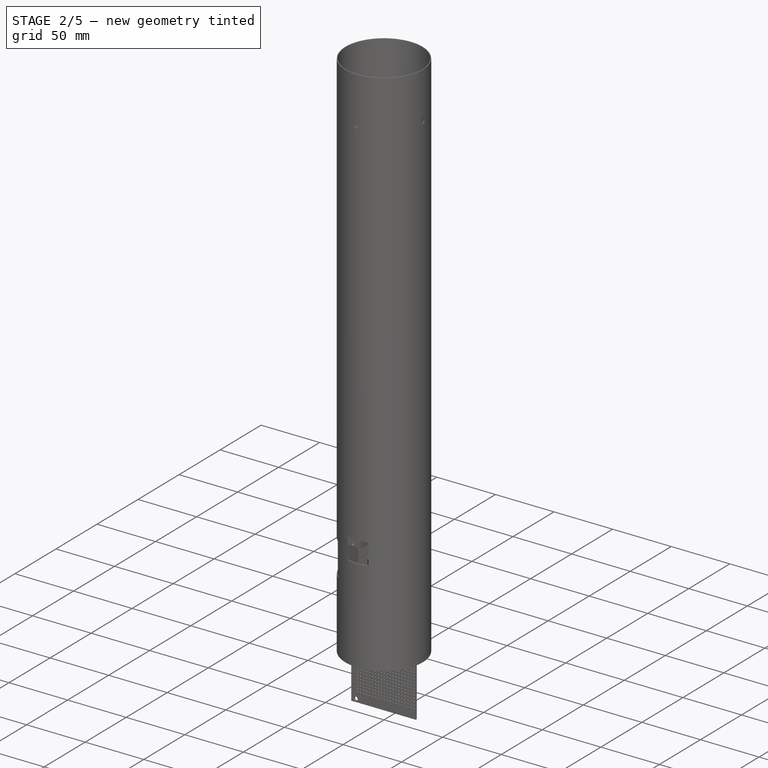
[diagram: stage 2 of 5 — iso view after this stage's code; geometry added in this stage tinted green]
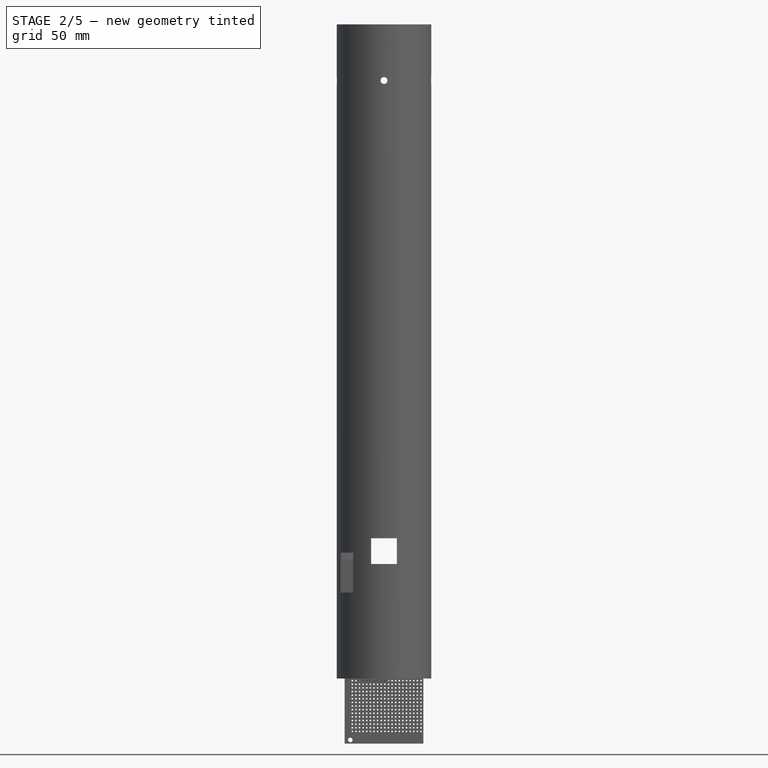
[diagram: stage 2 of 5 — front view after this stage's code; geometry added in this stage tinted green]
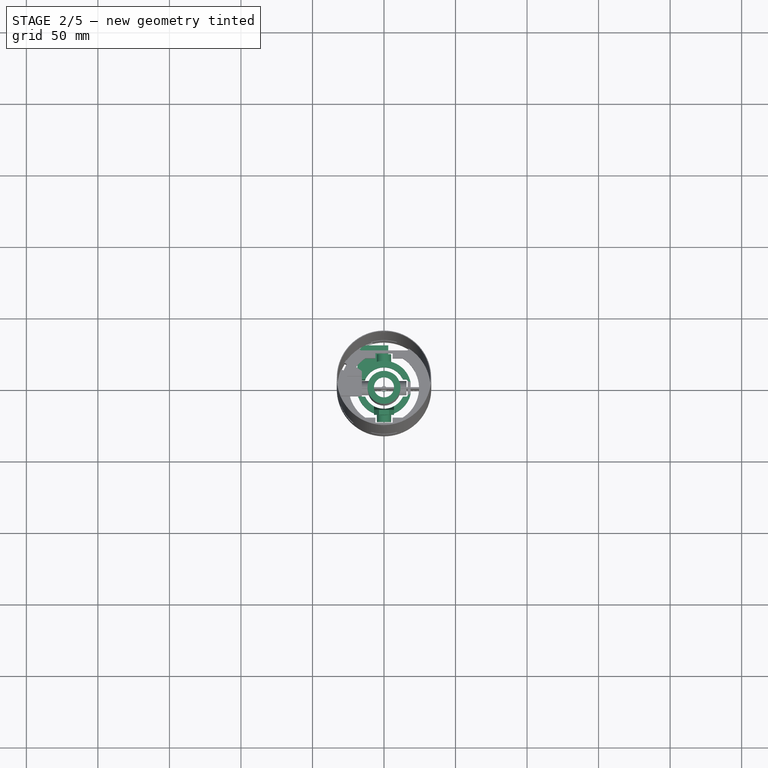
[diagram: stage 2 of 5 — top view after this stage's code; geometry added in this stage tinted green]
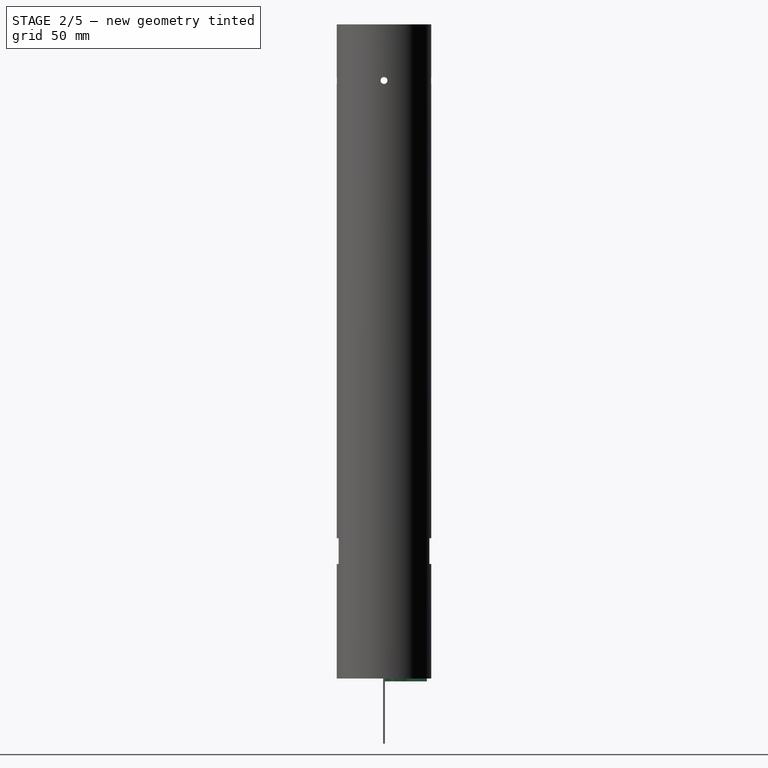
[diagram: stage 2 of 5 — right view after this stage's code; geometry added in this stage tinted green]
FEATURE [PartDesign::Body] Body009  label="Estes A-C Motor"
  Group = -> [Sketch038,Pad019]
  Origin = -> Origin013
  Tip = -> Pad019
FEATURE [App::DocumentObjectGroup] Group005  label="Motor"
  Group = -> [Body009,Body005]
FEATURE [Part::Feature] Part__Feature019  label="M3 Threaded Insert (94180A331) 001"
  Placement = pos=(-15.75,-1.8e-15,40) rot=(0,0,1;1.5708rad)
  shape: bbox 4.376 x 5.56 x 5.56 mm, 258 faces (baked)
FEATURE [Part::Feature] Part__Feature020  label="M3 Threaded Insert (94180A331) 002"
  Placement = pos=(15.75,-9e-15,40) rot=(0,0,-1;1.5708rad)
  shape: bbox 4.376 x 5.56 x 5.56 mm, 258 faces (baked)
FEATURE [App::DocumentObjectGroup] Group006  label="M3 Threaded Inserts"
  Group = -> [Part__Feature019,Part__Feature020]
FEATURE [Sketcher::SketchObject] Sketch040  label="[Middle Gimbal] Body"
  AttachmentOffset = pos=(0,0,40) rot=(0,0,1;0rad)
  FullyConstrained = false
  MapMode = 5
  Placement = pos=(0,0,40) rot=(0,0,1;0rad)
  Support = -> [XY_Plane011]
  sketch-geometry (16):
    g0: ArcOfCircle CenterX=0 CenterY=0 CenterZ=0 NormalX=0 NormalY=0 NormalZ=1 AngleXU=0 Radius=14.5 StartAngle=0.426617 EndAngle=2.71498
    g1: ArcOfCircle CenterX=0 CenterY=0 CenterZ=0 NormalX=0 NormalY=0 NormalZ=1 AngleXU=0 Radius=14.5 StartAngle=3.56821 EndAngle=5.85657
    g2: LineSegment StartX=18.5742 StartY=4 StartZ=0 EndX=18.5742 EndY=-4 EndZ=0
    g3: LineSegment StartX=-18.5742 StartY=4 StartZ=0 EndX=-18.5742 EndY=-4 EndZ=0
    g4: ArcOfCircle CenterX=0 CenterY=0 CenterZ=0 NormalX=0 NormalY=0 NormalZ=1 AngleXU=0 Radius=19 StartAngle=0.212113 EndAngle=2.92948
    g5: ArcOfCircle CenterX=0 CenterY=0 CenterZ=0 NormalX=0 NormalY=0 NormalZ=1 AngleXU=0 Radius=19 StartAngle=3.35371 EndAngle=6.07107
    g6: LineSegment StartX=15.5004 StartY=6 StartZ=0 EndX=13.2004 EndY=6 EndZ=0
    g7: LineSegment StartX=16.5004 StartY=5 StartZ=0 EndX=16.5004 EndY=-5 EndZ=0
    g8: LineSegment StartX=15.5004 StartY=-6 StartZ=0 EndX=13.2004 EndY=-6 EndZ=0
    g9: LineSegment StartX=-13.2004 StartY=6 StartZ=0 EndX=-15.5004 EndY=6 EndZ=0
    g10: LineSegment StartX=-13.2004 StartY=-6 StartZ=0 EndX=-15.5004 EndY=-6 EndZ=0
    g11: LineSegment StartX=-16.5004 StartY=-5 StartZ=0 EndX=-16.5004 EndY=5 EndZ=0
    g12: ArcOfCircle CenterX=15.5004 CenterY=5 CenterZ=0 NormalX=0 NormalY=0 NormalZ=1 AngleXU=0 Radius=1 StartAngle=-3.29e-14 EndAngle=1.5708
    g13: ArcOfCircle CenterX=15.5004 CenterY=-5 CenterZ=0 NormalX=0 NormalY=0 NormalZ=1 AngleXU=0 Radius=1 StartAngle=4.71239 EndAngle=6.28319
    g14: ArcOfCircle CenterX=-15.5004 CenterY=5 CenterZ=0 NormalX=0 NormalY=0 NormalZ=1 AngleXU=0 Radius=1 StartAngle=1.5708 EndAngle=3.14159
    g15: ArcOfCircle CenterX=-15.5004 CenterY=-5 CenterZ=0 NormalX=0 NormalY=0 NormalZ=1 AngleXU=0 Radius=1 StartAngle=3.14159 EndAngle=4.71239
  constraints (42):
    c: Coincident(g0,g-1)
    c: Coincident(g1,g0)
    c: Vertical(g2)
    c: Vertical(g3)
    c: Symmetric(g3,g2,g0)
    c: Coincident(g4,g0)
    c: Coincident(g4,g3)
    c: Coincident(g4,g2)
    c: Coincident(g5,g0)
    c: Coincident(g5,g3)
    c: Coincident(g5,g2)
    c: Radius(g4) = 19
    c: Radius(g0) = 14.5
    c: DistanceY(g2,g2) = 8
    c: Horizontal(g6)
    c: Vertical(g7)
    c: Horizontal(g8)
    c: Coincident(g1,g8)
    c: Coincident(g0,g6)
    c: Symmetric(g1,g0,g-1)
    c: Symmetric(g1,g0,g-1)
    c: Coincident(g9,g0)
    c: Horizontal(g9)
    c: Coincident(g10,g1)
    c: Horizontal(g10)
    c: Vertical(g11)
    c: Equal(g9,g6)
    c: Tangent(g6,g12) = -1.5708
    c: Tangent(g7,g12) = 1.5708
    c: DistanceX(g0,g7) = 3.3
    c: Tangent(g7,g13) = 1.5708
    c: Tangent(g8,g13) = 1.5708
    c: DistanceY(g8,g6) = 12
    c: Equal(g12,g13)
    c: DistanceX(g12,g7) = 1
    c: Tangent(g9,g14) = -1.5708
    c: Tangent(g11,g14) = 1.5708
    c: Tangent(g10,g15) = 1.5708
    c: Tangent(g11,g15) = 1.5708
    c: Equal(g15,g14)
    c: Equal(g14,g12)
    c: Equal(g11,g7)
FEATURE [PartDesign::Pad] Pad020
  Direction = (1,1,1)
  Length = 10
  Length2 = 100
  Midplane = true
  Profile = -> Sketch040
  Type = 0
FEATURE [Part::Feature] Part__Feature021  label="M3 Screw (91239A111) 001"
  Placement = pos=(20.25,0,40) rot=(0,1,0;1.5708rad)
  shape: bbox 8.215 x 5.701 x 5.701 mm, 74 faces (baked)
FEATURE [Sketcher::SketchObject] Sketch042  label="[Middle Gimbal] Center Gimbal Screw Hole"
  FullyConstrained = false
  MapMode = 5
  Placement = pos=(0,0,0) rot=(0.57735,0.57735,0.57735;2.0944rad)
  Support = -> [YZ_Plane011]
  sketch-geometry (1):
    g0: Circle CenterX=0 CenterY=39.9101 CenterZ=0 NormalX=0 NormalY=0 NormalZ=1 AngleXU=0 Radius=1.7
  constraints (2):
    c: PointOnObject(g0,g-2)
    c: Diameter(g0) = 3.4
FEATURE [PartDesign::Pocket] Pocket019
  BaseFeature = -> Pad020
  Length = 5
  Length2 = 100
  Midplane = true
  Profile = -> Sketch042
  Type = 1
FEATURE [Part::Feature] Part__Feature022  label="M3 Screw (91239A111) 002"
  Placement = pos=(-20.25,-5e-15,40) rot=(0.707107,0,-0.707107;3.14159rad)
  shape: bbox 8.215 x 5.701 x 5.701 mm, 74 faces (baked)
FEATURE [App::DocumentObjectGroup] Group007  label="M3 Screws"
  Group = -> [Part__Feature021,Part__Feature022]
FEATURE [App::DocumentObjectGroup] Group008  label="Middle Gimbal Servo"
  Group = -> [Part__Feature016,Fusion010]
FEATURE [Part::Feature] Part__Feature023  label="M3 Threaded Insert (94180A331) 003"
  Placement = pos=(1e-15,-23.75,40) rot=(0,0,1;3.14159rad)
  shape: bbox 5.56 x 4.376 x 5.56 mm, 258 faces (baked)
FEATURE [Part::Feature] Part__Feature024  label="M3 Threaded Insert (94180A331) 004"
  Placement = pos=(0,23.75,40) rot=(0,0,-1;0rad)
  shape: bbox 5.56 x 4.376 x 5.56 mm, 258 faces (baked)
FEATURE [App::DocumentObjectGroup] Group009  label="M3 Threaded Inserts001"
  Group = -> [Part__Feature023,Part__Feature024]
FEATURE [Sketcher::SketchObject] Sketch044  label="[Outer Gimbal] Body"
  AttachmentOffset = pos=(0,0,40) rot=(0,0,1;0rad)
  FullyConstrained = false
  MapMode = 5
  Placement = pos=(0,0,40) rot=(0,0,1;0rad)
  Support = -> [XY_Plane012]
  sketch-geometry (20):
    g0: ArcOfCircle CenterX=0 CenterY=0 CenterZ=0 NormalX=0 NormalY=0 NormalZ=1 AngleXU=0 Radius=24.5 StartAngle=5.27171 EndAngle=7.29466
    g1: ArcOfCircle CenterX=0 CenterY=0 CenterZ=0 NormalX=0 NormalY=0 NormalZ=1 AngleXU=0 Radius=24.5 StartAngle=2.13012 EndAngle=4.15307
    g2: LineSegment StartX=-16.4132 StartY=26.2666 StartZ=0 EndX=16.4132 EndY=26.2666 EndZ=0
    g3: LineSegment StartX=16.4132 StartY=-26.2666 StartZ=0 EndX=-16.4132 EndY=-26.2666 EndZ=0
    g4: LineSegment StartX=-16.4132 StartY=-26.2666 StartZ=0 EndX=-17.2224 EndY=-27.5616 EndZ=0
    g5: LineSegment StartX=16.4132 StartY=-26.2666 StartZ=0 EndX=17.2224 EndY=-27.5616 EndZ=0
    g6: LineSegment StartX=16.4132 StartY=26.2666 StartZ=0 EndX=17.2224 EndY=27.5616 EndZ=0
    g7: LineSegment StartX=-16.4132 StartY=26.2666 StartZ=0 EndX=-17.2224 EndY=27.5616 EndZ=0
    g8: ArcOfCircle CenterX=0 CenterY=0 CenterZ=0 NormalX=0 NormalY=0 NormalZ=1 AngleXU=0 Radius=32.5 StartAngle=5.27089 EndAngle=7.29548
    g9: ArcOfCircle CenterX=0 CenterY=0 CenterZ=0 NormalX=0 NormalY=0 NormalZ=1 AngleXU=0 Radius=32.5 StartAngle=2.1293 EndAngle=4.15388
    g10: LineSegment StartX=-13 StartY=20.7666 StartZ=0 EndX=-6 EndY=20.7666 EndZ=0
    g11: LineSegment StartX=13 StartY=20.7666 StartZ=0 EndX=6 EndY=20.7666 EndZ=0
    g12: LineSegment StartX=-6 StartY=20.7666 StartZ=0 EndX=-6 EndY=24.2666 EndZ=0
    g13: LineSegment StartX=6 StartY=20.7666 StartZ=0 EndX=6 EndY=24.2666 EndZ=0
    g14: LineSegment StartX=6 StartY=24.2666 StartZ=0 EndX=-6 EndY=24.2666 EndZ=0
    g15: LineSegment StartX=-13 StartY=-20.7666 StartZ=0 EndX=-6 EndY=-20.7666 EndZ=0
    g16: LineSegment StartX=-6 StartY=-20.7666 StartZ=0 EndX=-6 EndY=-24.2666 EndZ=0
    g17: LineSegment StartX=-6 StartY=-24.2666 StartZ=0 EndX=6 EndY=-24.2666 EndZ=0
    g18: LineSegment StartX=6 StartY=-24.2666 StartZ=0 EndX=6 EndY=-20.7666 EndZ=0
    g19: LineSegment StartX=6 StartY=-20.7666 StartZ=0 EndX=13 EndY=-20.7666 EndZ=0
  constraints (56):
    c: Coincident(g0,g-1)
    c: Coincident(g1,g0)
    c: Symmetric(g0,g1,g0)
    c: Horizontal(g2)
    c: Coincident(g4,g3)
    c: Coincident(g5,g3)
    c: Coincident(g6,g2)
    c: Coincident(g7,g2)
    c: Coincident(g8,g0)
    c: Coincident(g8,g6)
    c: Coincident(g8,g5)
    c: Coincident(g9,g0)
    c: Coincident(g9,g4)
    c: Coincident(g9,g7)
    c: Diameter(g9) = 65
    c: Equal(g9,g8)
    c: Equal(g2,g3)
    c: Symmetric(g2,g3,g0)
    c: Symmetric(g3,g2,g0)
    c: Perpendicular(g9,g4)
    c: Perpendicular(g8,g5)
    c: Perpendicular(g9,g7)
    c: Perpendicular(g8,g6)
    c: DistanceX(g1,g0) = 26
    c: DistanceY(g0,g2) = 5.5
    c: Equal(g7,g6)
    c: Angle(g6,g2) = 2.1293
    c: Radius(g1) = 24.5
    c: Coincident(g10,g1)
    c: Horizontal(g10)
    c: Coincident(g11,g0)
    c: Horizontal(g11)
    c: Coincident(g12,g10)
    c: Vertical(g12)
    c: Coincident(g13,g11)
    c: Vertical(g13)
    c: Coincident(g14,g13)
    c: Coincident(g14,g12)
    c: Symmetric(g12,g13,g-2)
    c: DistanceX(g1,g0) = 26
    c: DistanceY(g12,g12) = 3.5
    c: Coincident(g15,g1)
    c: Horizontal(g15)
    c: Coincident(g16,g15)
    c: Vertical(g16)
    c: Coincident(g18,g17)
    c: Vertical(g18)
    c: Coincident(g19,g18)
    c: Coincident(g19,g0)
    c: Equal(g12,g13)
    c: DistanceX(g14,g14) = 12
    c: Equal(g16,g12)
    c: Equal(g18,g16)
    c: Equal(g17,g14)
    c: Coincident(g16,g17)
    c: Symmetric(g16,g17,g-2)
FEATURE [Part::Feature] Part__Feature025  label="M3 Screw (91239A111) 003"
  Placement = pos=(0,-27.75,40) rot=(0.57735,0.57735,-0.57735;2.0944rad)
  shape: bbox 5.701 x 8.215 x 5.701 mm, 74 faces (baked)
FEATURE [Part::Feature] Part__Feature026  label="M3 Screw (91239A111) 004"
  Placement = pos=(-1e-15,27.75,40) rot=(0.57735,-0.57735,-0.57735;4.18879rad)
  shape: bbox 5.701 x 8.215 x 5.701 mm, 74 faces (baked)
FEATURE [App::DocumentObjectGroup] Group010  label="M3 Screws001"
  Group = -> [Part__Feature025,Part__Feature026]
FEATURE [Sketcher::SketchObject] Sketch045  label="[Middle Gimbal] Axis Of Rotation"
  AttachmentOffset = pos=(0,0,18) rot=(0,0,1;0rad)
  FullyConstrained = false
  MapMode = 5
  Placement = pos=(0,-18,-4e-15) rot=(1,0,0;1.5708rad)
  Support = -> [XZ_Plane011]
  sketch-geometry (2):
    g0: Circle CenterX=0 CenterY=40 CenterZ=0 NormalX=0 NormalY=0 NormalZ=1 AngleXU=0 Radius=2.6
    g1: Circle CenterX=0 CenterY=40 CenterZ=0 NormalX=0 NormalY=0 NormalZ=1 AngleXU=0 Radius=5
  constraints (5):
    c: PointOnObject(g0,g-2)
    c: Coincident(g1,g0)
    c: Diameter(g0) = 5.2
    c: Diameter(g1) = 10
    c: DistanceY(g0) = 40
FEATURE [PartDesign::Pad] Pad021
  BaseFeature = -> Pocket019
  Direction = (1,1,1)
  Length = 5.7
  Length2 = 100
  Profile = -> Sketch045
  Type = 0
FEATURE [PartDesign::PolarPattern] PolarPattern004
  Angle = 360
  Axis = -> Z_Axis011
  BaseFeature = -> Pad021
  Occurrences = 2
  Originals = -> [Pad021]
FEATURE [Sketcher::SketchObject] Sketch047  label="[Middle Gimbal] Screw Holes"
  FullyConstrained = false
  MapMode = 5
  Placement = pos=(0,0,0) rot=(1,0,0;1.5708rad)
  Support = -> [XZ_Plane011]
  sketch-geometry (1):
    g0: Circle CenterX=0 CenterY=40 CenterZ=0 NormalX=0 NormalY=0 NormalZ=1 AngleXU=0 Radius=1.7
  constraints (3):
    c: PointOnObject(g0,g-2)
    c: DistanceY(g0) = 40
    c: Diameter(g0) = 3.4
FEATURE [PartDesign::Pocket] Pocket021
  BaseFeature = -> PolarPattern004
  Length = 5
  Length2 = 100
  Midplane = true
  Profile = -> Sketch047
  Type = 1
FEATURE [Sketcher::SketchObject] Sketch053  label="[Center Motor Gimbal] Motor Tube Mount Lip"
  FullyConstrained = false
  MapMode = 5
  Placement = pos=(0,0,70) rot=(0,0,1;0rad)
  Support = -> [Pocket020]
  expr: Constraints[2] = Sketch028.Constraints[3]
  sketch-geometry (2):
    g0: Circle CenterX=0 CenterY=0 CenterZ=0 NormalX=0 NormalY=0 NormalZ=1 AngleXU=0 Radius=7
    g1: Circle CenterX=0 CenterY=0 CenterZ=0 NormalX=0 NormalY=0 NormalZ=1 AngleXU=0 Radius=11.5
  constraints (4):
    c: Coincident(g0,g-1)
    c: Coincident(g1,g0)
    c: Diameter(g1) = 23
    c: Diameter(g0) = 14
FEATURE [PartDesign::Pad] Pad023
  BaseFeature = -> Pocket020
  Direction = (1,1,1)
  Length = 2
  Length2 = 100
  Profile = -> Sketch053
  Type = 0
FEATURE [Sketcher::SketchObject] Sketch059  label="[Middle Gimbal] Servo Mount Stand"
  FullyConstrained = false
  MapMode = 5
  Placement = pos=(0,0,35) rot=(1,0,0;3.14159rad)
  Support = -> [Pocket021]
  sketch-geometry (9):
    g0: ArcOfCircle CenterX=0 CenterY=0 CenterZ=0 NormalX=0 NormalY=0 NormalZ=1 AngleXU=0 Radius=14.5 StartAngle=3.56821 EndAngle=4.71239
    g1: ArcOfCircle CenterX=0 CenterY=0 CenterZ=0 NormalX=0 NormalY=0 NormalZ=1 AngleXU=0 Radius=19 StartAngle=3.35371 EndAngle=4.87095
    g2: LineSegment StartX=-2.7e-15 StartY=-14.5 StartZ=0 EndX=3 EndY=-14.5 EndZ=0
    g3: LineSegment StartX=3 StartY=-14.5 StartZ=0 EndX=3 EndY=-18.7617 EndZ=0
    g4: LineSegment StartX=-18.5742 StartY=-4 StartZ=0 EndX=-18.5742 EndY=0 EndZ=0
    g5: LineSegment StartX=-18.5742 StartY=0 StartZ=0 EndX=-16.5004 EndY=0 EndZ=0
    g6: LineSegment StartX=-16.5004 StartY=0 StartZ=0 EndX=-16.5004 EndY=-5 EndZ=0
    g7: LineSegment StartX=-15.5004 StartY=-6 StartZ=0 EndX=-13.2004 EndY=-6 EndZ=0
    g8: ArcOfCircle CenterX=-15.5004 CenterY=-5 CenterZ=0 NormalX=0 NormalY=0 NormalZ=1 AngleXU=0 Radius=1 StartAngle=3.14159 EndAngle=4.71239
  constraints (26):
    c: Coincident(g0,g-1)
    c: PointOnObject(g0,g-2)
    c: Coincident(g1,g0)
    c: Coincident(g2,g0)
    c: Horizontal(g2)
    c: Coincident(g3,g2)
    c: Vertical(g3)
    c: Coincident(g1,g3)
    c: DistanceX(g2,g2) = 3
    c: Radius(g0) = 14.5
    c: Radius(g1) = 19
    c: DistanceY(g7) = -6
    c: Coincident(g4,g1)
    c: PointOnObject(g4,g-1)
    c: Vertical(g4)
    c: Coincident(g5,g4)
    c: PointOnObject(g5,g-1)
    c: Coincident(g6,g5)
    c: Vertical(g6)
    c: Horizontal(g7)
    c: DistanceY(g4,g4) = 4
    c: Coincident(g0,g7)
    c: Tangent(g6,g8) = -1.5708
    c: Tangent(g7,g8) = -1.5708
    c: DistanceY(g7,g8) = 1
    c: DistanceX(g6,g0) = 3.3
FEATURE [PartDesign::Pad] Pad024
  BaseFeature = -> Pocket021
  Direction = (1,1,1)
  Length = 2
  Length2 = 100
  Profile = -> Sketch059
  Type = 0
FEATURE [Sketcher::SketchObject] Sketch050  label="[Middle Gimbal] Servo Mount Section 1"
  FullyConstrained = false
  MapMode = 5
  Placement = pos=(0,0,33) rot=(1,0,0;3.14159rad)
  Support = -> [Pad024]
  sketch-geometry (11):
    g0: LineSegment StartX=-18.5742 StartY=0 StartZ=0 EndX=-18.5742 EndY=-25.7574 EndZ=0
    g1: LineSegment StartX=-15.5004 StartY=-6 StartZ=0 EndX=-13.2004 EndY=-6 EndZ=0
    g2: LineSegment StartX=-18.5742 StartY=-25.7574 StartZ=0 EndX=-14.3315 EndY=-30 EndZ=0
    g3: LineSegment StartX=-2.7e-15 StartY=-14.5 StartZ=0 EndX=3 EndY=-14.5 EndZ=0
    g4: LineSegment StartX=3 StartY=-14.5 StartZ=0 EndX=3 EndY=-30 EndZ=0
    g5: LineSegment StartX=3 StartY=-30 StartZ=0 EndX=-14.3315 EndY=-30 EndZ=0
    g6: ArcOfCircle CenterX=0 CenterY=0 CenterZ=0 NormalX=0 NormalY=0 NormalZ=1 AngleXU=0 Radius=14.5 StartAngle=3.56821 EndAngle=4.71239
    g7: ArcOfCircle CenterX=0 CenterY=0 CenterZ=0 NormalX=0 NormalY=0 NormalZ=1 AngleXU=0 Radius=19 StartAngle=3.35371 EndAngle=4.71239
    g8: LineSegment StartX=-16.5004 StartY=-5 StartZ=0 EndX=-16.5004 EndY=0 EndZ=0
    g9: ArcOfCircle CenterX=-15.5004 CenterY=-5 CenterZ=0 NormalX=0 NormalY=0 NormalZ=1 AngleXU=0 Radius=1 StartAngle=3.14159 EndAngle=4.71239
    g10: LineSegment StartX=-16.5004 StartY=0 StartZ=0 EndX=-18.5742 EndY=0 EndZ=0
  constraints (33):
    c: Vertical(g0)
    c: Horizontal(g1)
    c: Coincident(g2,g0)
    c: Angle(g2,g0) = 2.35619
    c: Horizontal(g3)
    c: Coincident(g4,g3)
    c: Vertical(g4)
    c: Coincident(g5,g4)
    c: Horizontal(g5)
    c: Coincident(g5,g2)
    c: DistanceY(g4,g4) = 15.5
    c: DistanceX(g3) = 3
    c: Coincident(g6,g-1)
    c: Coincident(g6,g3)
    c: PointOnObject(g3,g-2)
    c: Radius(g6) = 14.5
    c: DistanceY(g1) = -6
    c: Coincident(g7,g6)
    c: PointOnObject(g7,g-2)
    c: Radius(g7) = 19
    c: Coincident(g6,g1)
    c: PointOnObject(g8,g-1)
    c: Vertical(g8)
    c: Tangent(g1,g9) = -1.5708
    c: Tangent(g8,g9) = 1.5708
    c: DistanceY(g1,g9) = 1
    c: DistanceX(g8,g1) = 3.3
    c: Coincident(g10,g8)
    c: PointOnObject(g10,g-1)
    c: Coincident(g0,g10)
    c: DistanceY(g7) = -4
    c: PointOnObject(g7,g0)
    c: Distance(g2) = 6
FEATURE [Sketcher::SketchObject] Sketch057  label="[Middle Gimbal] Servo Mount Section 2"
  AttachmentOffset = pos=(0,0,35) rot=(0,0,1;0rad)
  FullyConstrained = false
  MapMode = 5
  Placement = pos=(0,0,-2) rot=(1,0,0;3.14159rad)
  Support = -> [Pad024]
  expr: Constraints[23] = Sketch050.Constraints[25]
  expr: Constraints[17] = Sketch050.Constraints[19]
  expr: Constraints[14] = Sketch050.Constraints[16]
  expr: Constraints[13] = Sketch050.Constraints[15]
  expr: Constraints[11] = Sketch050.Constraints[11]
  expr: Constraints[10] = 15.5 - 1.5
  expr: Constraints[24] = Sketch050.Constraints[26]
  expr: Constraints[30] = Sketch050.Constraints[32]
  expr: Constraints[28] = Sketch050.Constraints[30]
  expr: Constraints[3] = Sketch050.Constraints[3]
  sketch-geometry (12):
    g0: LineSegment StartX=-18.5742 StartY=0 StartZ=0 EndX=-18.5742 EndY=-25.7574 EndZ=0
    g1: LineSegment StartX=-15.5004 StartY=-6 StartZ=0 EndX=-13.2004 EndY=-6 EndZ=0
    g2: LineSegment StartX=-18.5742 StartY=-25.7574 StartZ=0 EndX=-14.3315 EndY=-30 EndZ=0
    g3: LineSegment StartX=-13.2004 StartY=-16 StartZ=0 EndX=3 EndY=-16 EndZ=0
    g4: LineSegment StartX=3 StartY=-16 StartZ=0 EndX=3 EndY=-30 EndZ=0
    g5: LineSegment StartX=3 StartY=-30 StartZ=0 EndX=-14.3315 EndY=-30 EndZ=0
    g6: ArcOfCircle CenterX=0 CenterY=0 CenterZ=0 NormalX=0 NormalY=0 NormalZ=1 AngleXU=0 Radius=14.5 StartAngle=3.56821 EndAngle=4.71239
    g7: ArcOfCircle CenterX=0 CenterY=0 CenterZ=0 NormalX=0 NormalY=0 NormalZ=1 AngleXU=0 Radius=19 StartAngle=3.35371 EndAngle=4.71239
    g8: LineSegment StartX=-16.5004 StartY=-5 StartZ=0 EndX=-16.5004 EndY=0 EndZ=0
    g9: ArcOfCircle CenterX=-15.5004 CenterY=-5 CenterZ=0 NormalX=0 NormalY=0 NormalZ=1 AngleXU=0 Radius=1 StartAngle=3.14159 EndAngle=4.71239
    g10: LineSegment StartX=-16.5004 StartY=0 StartZ=0 EndX=-18.5742 EndY=0 EndZ=0
    g11: LineSegment StartX=-13.2004 StartY=-6 StartZ=0 EndX=-13.2004 EndY=-16 EndZ=0
  constraints (36):
    c: Vertical(g0)
    c: Horizontal(g1)
    c: Coincident(g2,g0)
    c: Angle(g2,g0) = 2.35619
    c: Horizontal(g3)
    c: Coincident(g4,g3)
    c: Vertical(g4)
    c: Coincident(g5,g4)
    c: Horizontal(g5)
    c: Coincident(g5,g2)
    c: DistanceY(g4,g4) = 14
    c: DistanceX(g3) = 3
    c: Coincident(g6,g-1)
    c: Radius(g6) = 14.5
    c: DistanceY(g1) = -6
    c: Coincident(g7,g6)
    c: PointOnObject(g7,g-2)
    c: Radius(g7) = 19
    c: Coincident(g6,g1)
    c: PointOnObject(g8,g-1)
    c: Vertical(g8)
    c: Tangent(g1,g9) = -1.5708
    c: Tangent(g8,g9) = 1.5708
    c: DistanceY(g1,g9) = 1
    c: DistanceX(g8,g1) = 3.3
    c: Coincident(g10,g8)
    c: PointOnObject(g10,g-1)
    c: Coincident(g0,g10)
    c: DistanceY(g7) = -4
    c: PointOnObject(g7,g0)
    c: Distance(g2) = 6
    c: PointOnObject(g6,g-2)
    c: Coincident(g11,g1)
    c: Vertical(g11)
    c: Coincident(g3,g11)
    c: DistanceY(g3,g6) = 1.5
FEATURE [PartDesign::AdditiveLoft] AdditiveLoft
  BaseFeature = -> Pad024
  Closed = false
  Profile = -> Sketch057
  Ruled = false
  Sections = -> [Sketch050]
FEATURE [Sketcher::SketchObject] Sketch054  label="[Middle Gimbal] Servo Cutout"
  FullyConstrained = false
  MapMode = 5
  Placement = pos=(3,0,0) rot=(0.57735,0.57735,0.57735;2.0944rad)
  Support = -> [AdditiveLoft]
  sketch-geometry (4):
    g0: LineSegment StartX=16.5 StartY=27.5 StartZ=0 EndX=30.5 EndY=27.5 EndZ=0
    g1: LineSegment StartX=30.5 StartY=27.5 StartZ=0 EndX=30.5 EndY=3.5 EndZ=0
    g2: LineSegment StartX=30.5 StartY=3.5 StartZ=0 EndX=16.5 EndY=3.5 EndZ=0
    g3: LineSegment StartX=16.5 StartY=3.5 StartZ=0 EndX=16.5 EndY=27.5 EndZ=0
  constraints (12):
    c: Coincident(g0,g1)
    c: Coincident(g1,g2)
    c: Coincident(g2,g3)
    c: Coincident(g3,g0)
    c: Horizontal(g0)
    c: Horizontal(g2)
    c: Vertical(g1)
    c: Vertical(g3)
    c: DistanceY(g1,g1) = 24
    c: DistanceX(g0,g0) = 14
    c: DistanceX(g-1,g2) = 16.5
    c: DistanceY(g2) = 3.5
FEATURE [PartDesign::Pocket] Pocket028
  BaseFeature = -> AdditiveLoft
  Length = 16.5
  Length2 = 100
  Profile = -> Sketch054
  Type = 0
FEATURE [Sketcher::SketchObject] Sketch055  label="[Middle Gimbal] Servo Wires Cutout"
  FullyConstrained = false
  MapMode = 5
  Placement = pos=(-18.5742,0,-1.9e-15) rot=(0.57735,-0.57735,-0.57735;2.0944rad)
  Support = -> [Pocket028]
  sketch-geometry (4):
    g0: LineSegment StartX=-30 StartY=31.5 StartZ=0 EndX=-21 EndY=31.5 EndZ=0
    g1: LineSegment StartX=-21 StartY=31.5 StartZ=0 EndX=-21 EndY=27.5 EndZ=0
    g2: LineSegment StartX=-21 StartY=27.5 StartZ=0 EndX=-30 EndY=27.5 EndZ=0
    g3: LineSegment StartX=-30 StartY=27.5 StartZ=0 EndX=-30 EndY=31.5 EndZ=0
  constraints (12):
    c: Coincident(g0,g1)
    c: Coincident(g1,g2)
    c: Coincident(g2,g3)
    c: Coincident(g3,g0)
    c: Horizontal(g0)
    c: Horizontal(g2)
    c: Vertical(g1)
    c: Vertical(g3)
    c: DistanceY(g1,g1) = 4
    c: DistanceX(g0,g0) = 9
    c: DistanceX(g1,g-1) = 21
    c: DistanceY(g1) = 27.5
FEATURE [PartDesign::Pocket] Pocket029
  BaseFeature = -> Pocket028
  Length = 12
  Length2 = 100
  Profile = -> Sketch055
  Type = 0
FEATURE [Sketcher::SketchObject] Sketch060  label="[Middle Gimbal] Servo Mount Screw Holes"
  FullyConstrained = false
  MapMode = 5
  Placement = pos=(3,0,-2e-16) rot=(0.57735,0.57735,0.57735;2.0944rad)
  Support = -> [Pocket029]
  sketch-geometry (3):
    g0: Circle CenterX=23.3 CenterY=29.2 CenterZ=0 NormalX=0 NormalY=0 NormalZ=1 AngleXU=0 Radius=0.9
    g1: Circle CenterX=23.3 CenterY=1.6 CenterZ=0 NormalX=0 NormalY=0 NormalZ=1 AngleXU=0 Radius=0.9
    g2: LineSegment StartX=23.3 StartY=29.2 StartZ=0 EndX=23.3 EndY=1.6 EndZ=0
  constraints (8):
    c: Diameter(g1) = 1.8
    c: Diameter(g0) = 1.8
    c: DistanceX(g1) = 23.3
    c: DistanceY(g1) = 1.6
    c: Coincident(g2,g0)
    c: Coincident(g2,g1)
    c: Vertical(g2)
    c: DistanceY(g2,g2) = 27.6
FEATURE [PartDesign::Pocket] Pocket030
  BaseFeature = -> Pocket029
  Length = 7
  Length2 = 100
  Profile = -> Sketch060
  Type = 0
FEATURE [PartDesign::Body] Body010  label="[Outer Gimbal] Servo Pushrod"
  Group = -> [Sketch069,Sketch070,AdditivePipe]
  Origin = -> Origin017
  Placement = pos=(0,-22.5,61.5) rot=(0,0,1;0rad)
  Tip = -> AdditivePipe
FEATURE [Sketcher::SketchObject] Sketch071  label="[Inner Gimbal SPR] Servo Pushrod Path"
  FullyConstrained = false
  MapMode = 5
  Support = -> [XY_Plane018]
  sketch-geometry (5):
    g0: LineSegment StartX=-26.7 StartY=4.4 StartZ=0 EndX=-23.5 EndY=4.4 EndZ=0
    g1: LineSegment StartX=-22.3 StartY=3.2 StartZ=0 EndX=-22.3 EndY=1.2 EndZ=0
    g2: LineSegment StartX=-21.1 StartY=0 StartZ=0 EndX=10 EndY=0 EndZ=0
    g3: ArcOfCircle CenterX=-21.1 CenterY=1.2 CenterZ=0 NormalX=0 NormalY=0 NormalZ=1 AngleXU=0 Radius=1.2 StartAngle=3.14159 EndAngle=4.71239
    g4: ArcOfCircle CenterX=-23.5 CenterY=3.2 CenterZ=0 NormalX=0 NormalY=0 NormalZ=1 AngleXU=0 Radius=1.2 StartAngle=0 EndAngle=1.5708
  constraints (14):
    c: Horizontal(g0)
    c: Horizontal(g2)
    c: Vertical(g1)
    c: Tangent(g1,g3) = -1.5708
    c: Tangent(g2,g3) = -1.5708
    c: DistanceX(g1,g2) = 32.3
    c: DistanceY(g2,g3) = 1.2
    c: Tangent(g0,g4) = 1.5708
    c: Tangent(g1,g4) = 1.5708
    c: DistanceY(g4,g0) = 1.2
    c: DistanceX(g0,g1) = 4.4
    c: DistanceY(g2,g0) = 4.4
    c: DistanceX(g-1,g2) = 10
    c: PointOnObject(g2,g-1)
FEATURE [Sketcher::SketchObject] Sketch072  label="[Inner Gimbal SPR] Servo Pushrod Diameter"
  FullyConstrained = false
  MapMode = 5
  Placement = pos=(0,0,0) rot=(0.57735,0.57735,0.57735;2.0944rad)
  Support = -> [YZ_Plane018]
  expr: .AttachmentOffset.Base.x = 0
  sketch-geometry (1):
    g0: Circle CenterX=0 CenterY=0 CenterZ=0 NormalX=0 NormalY=0 NormalZ=1 AngleXU=0 Radius=0.6
  constraints (2):
    c: Coincident(g0,g-1)
    c: Diameter(g0) = 1.2
FEATURE [PartDesign::AdditivePipe] AdditivePipe001
  AuxilleryCurvelinear = true
  AuxillerySpineTangent = false
  Binormal = (0,0,0)
  Mode = 0
  Placement = pos=(0,0,0) rot=(0.57735,0.57735,0.57735;2.0944rad)
  Profile = -> Sketch072
  Spine = -> Sketch071
  SpineTangent = false
  Transformation = 0
  Transition = 0
FEATURE [Part::Part2DObjectPython] ShapeString001  label="Up Shape Inner"  # Draft 2D object (typed FeaturePython)
  FontFile = <path>
  Placement = pos=(-3,-19,55) rot=(1,0,0;1.5708rad)
  Size = 1.5
  String = UP
  Tracking = 0
FEATURE [Part::Part2DObjectPython] ShapeString002  label="Up Shape Center"  # Draft 2D object (typed FeaturePython)
  FontFile = <path>
  Placement = pos=(-3,-11,66) rot=(1,0,0;1.5708rad)
  Size = 1.5
  String = UP
  Tracking = 0
FEATURE [PartDesign::Pocket] Pocket037
  BaseFeature = -> Pad023
  Length = 1
  Length2 = 100
  Midplane = true
  Profile = -> ShapeString002
  Type = 0
FEATURE [Sketcher::SketchObject] Sketch074  label="[Middle Gimbal] Outer Gimbal Servo Connection 3"
  AttachmentOffset = pos=(0,0,20) rot=(0,0,1;0rad)
  FullyConstrained = false
  MapMode = 5
  Placement = pos=(0,0,65) rot=(0,0,1;0rad)
  Support = -> [Pocket030]
  expr: Constraints[1] = Sketch067.Constraints[1]
  expr: Constraints[12] = Sketch067.Constraints[12]
  expr: Constraints[20] = Sketch067.Constraints[21]
  sketch-geometry (9):
    g0: Circle CenterX=0 CenterY=0 CenterZ=0 NormalX=0 NormalY=0 NormalZ=1 AngleXU=0 Radius=14.5
    g1: LineSegment StartX=-3.5 StartY=-14.5 StartZ=0 EndX=3.5 EndY=-14.5 EndZ=0
    g2: LineSegment StartX=-3.5 StartY=-15.5 StartZ=0 EndX=3.5 EndY=-15.5 EndZ=0
    g3: LineSegment StartX=3.5 StartY=-15.5 StartZ=0 EndX=3.5 EndY=-19 EndZ=0
    g4: LineSegment StartX=-3.5 StartY=-19 StartZ=0 EndX=-3.5 EndY=-15.5 EndZ=0
    g5: LineSegment StartX=-3.5 StartY=-19 StartZ=0 EndX=3.5 EndY=-19 EndZ=0
    g6: LineSegment StartX=3.5 StartY=-15.5 StartZ=0 EndX=3.5 EndY=-14.5 EndZ=0
    g7: LineSegment StartX=-3.5 StartY=-15.5 StartZ=0 EndX=-3.5 EndY=-14.5 EndZ=0
    g8: Circle CenterX=0 CenterY=0 CenterZ=0 NormalX=0 NormalY=0 NormalZ=1 AngleXU=0 Radius=19
  constraints (23):
    c: Coincident(g0,g-1)
    c: Radius(g0) = 14.5
    c: Tangent(g1,g0)
    c: Symmetric(g1,g1,g-2)
    c: Coincident(g2,g3)
    c: Coincident(g4,g2)
    c: Horizontal(g2)
    c: Vertical(g3)
    c: Vertical(g4)
    c: Coincident(g5,g4)
    c: Coincident(g5,g3)
    c: Horizontal(g5)
    c: DistanceY(g2,g1) = 1
    c: Coincident(g6,g2)
    c: Coincident(g6,g1)
    c: Vertical(g6)
    c: Coincident(g7,g2)
    c: Coincident(g7,g1)
    c: Vertical(g7)
    c: Coincident(g8,g-1)
    c: Radius(g8) = 19
    c: Tangent(g5,g8)
    c: DistanceX(g1,g1) = 7
FEATURE [PartDesign::AdditiveLoft] AdditiveLoft001
  BaseFeature = -> Pocket030
  Closed = false
  Profile = -> Sketch064
  Ruled = true
  Sections = -> [Sketch067,Sketch074]
FEATURE [PartDesign::Pocket] Pocket036
  BaseFeature = -> AdditiveLoft001
  Length = 1
  Length2 = 100
  Profile = -> ShapeString001
  Type = 0
FEATURE [Sketcher::SketchObject] Sketch075  label="[Middle Gimbal] Outer Gimbal Push Rod Stopper Hole"
  FullyConstrained = false
  MapMode = 5
  Placement = pos=(0,-19,0) rot=(1,0,0;1.5708rad)
  Support = -> [Pocket036]
  sketch-geometry (1):
    g0: Circle CenterX=0 CenterY=61.5 CenterZ=0 NormalX=0 NormalY=0 NormalZ=1 AngleXU=0 Radius=0.9
  constraints (3):
    c: PointOnObject(g0,g-2)
    c: Diameter(g0) = 1.8
    c: DistanceY(g0) = 61.5
FEATURE [PartDesign::Pocket] Pocket038
  BaseFeature = -> Pocket036
  Length = 3.5
  Length2 = 100
  Profile = -> Sketch075
  Type = 0
FEATURE [Sketcher::SketchObject] Sketch076  label="[Servo PRLS] Thread"
  FullyConstrained = false
  MapMode = 5
  Support = -> [XY_Plane019]
  sketch-geometry (1):
    g0: Circle CenterX=0 CenterY=0 CenterZ=0 NormalX=0 NormalY=0 NormalZ=1 AngleXU=0 Radius=0.9
  constraints (2):
    c: Coincident(g0,g-1)
    c: Diameter(g0) = 1.8
FEATURE [PartDesign::Pad] Pad027
  Direction = (1,1,1)
  Length = 3
  Length2 = 100
  Profile = -> Sketch076
  Type = 0
FEATURE [Sketcher::SketchObject] Sketch077  label="[Servo PRLS] Solid"
  FullyConstrained = false
  MapMode = 5
  Placement = pos=(0,0,3) rot=(0,0,1;0rad)
  Support = -> [Pad027]
  sketch-geometry (1):
    g0: Circle CenterX=0 CenterY=0 CenterZ=0 NormalX=0 NormalY=0 NormalZ=1 AngleXU=0 Radius=1
  constraints (2):
    c: Coincident(g0,g-1)
    c: Diameter(g0) = 2
FEATURE [PartDesign::Pad] Pad028
  BaseFeature = -> Pad027
  Direction = (1,1,1)
  Length = 1.75
  Length2 = 100
  Profile = -> Sketch077
  Type = 0
FEATURE [Sketcher::SketchObject] Sketch078  label="[Servo PRLS] Body"
  FullyConstrained = false
  MapMode = 5
  Placement = pos=(0,0,4.75) rot=(0,0,1;0rad)
  Support = -> [Pad028]
  sketch-geometry (1):
    g0: Circle CenterX=0 CenterY=0 CenterZ=0 NormalX=0 NormalY=0 NormalZ=1 AngleXU=0 Radius=2
  constraints (2):
    c: Coincident(g0,g-1)
    c: Diameter(g0) = 4
FEATURE [PartDesign::Pad] Pad029
  BaseFeature = -> Pad028
  Direction = (1,1,1)
  Length = 6
  Length2 = 100
  Profile = -> Sketch078
  Type = 0
FEATURE [Sketcher::SketchObject] Sketch079  label="[Servo PRLS] Pushrod Hole"
  FullyConstrained = false
  MapMode = 5
  Placement = pos=(0,0,0) rot=(0.57735,0.57735,0.57735;2.0944rad)
  Support = -> [YZ_Plane019]
  sketch-geometry (4):
    g0: Circle CenterX=0 CenterY=7.15 CenterZ=0 NormalX=0 NormalY=0 NormalZ=1 AngleXU=0 Radius=0.65
    g1: LineSegment StartX=0 StartY=0 StartZ=0 EndX=0 EndY=3 EndZ=0
    g2: LineSegment StartX=0 StartY=3 StartZ=0 EndX=0 EndY=4.75 EndZ=0
    g3: LineSegment StartX=0 StartY=4.75 StartZ=0 EndX=0 EndY=6.5 EndZ=0
  constraints (12):
    c: PointOnObject(g0,g-2)
    c: Diameter(g0) = 1.3
    c: Coincident(g-1,g1)
    c: PointOnObject(g1,g-2)
    c: Coincident(g1,g2)
    c: Vertical(g2)
    c: Coincident(g2,g3)
    c: PointOnObject(g3,g0)
    c: Vertical(g3)
    c: DistanceY(g3,g3) = 1.75
    c: DistanceY(g2,g2) = 1.75
    c: DistanceY(g1,g1) = 3
FEATURE [App::Link] Link001  label="Servo Pushrod Linkage Stopper001"
  LinkPlacement = pos=(12.5,-1.66896e-06,11.7) rot=(0.57735,-0.57735,0.57735;4.18879rad)
  LinkedObject = -> Body012
  Placement = pos=(12.5,-1.66896e-06,11.7) rot=(0.57735,-0.57735,0.57735;4.18879rad)
FEATURE [PartDesign::Pocket] Pocket039
  BaseFeature = -> Pad029
  Length = 5
  Length2 = 100
  Midplane = true
  Profile = -> Sketch079
  Type = 1
FEATURE [PartDesign::Body] Body012  label="Servo Pushrod Linkage Stopper"
  Group = -> [Sketch076,Sketch077,Sketch078,Pad027,Pad028,Pad029,Sketch079,Pocket039]
  Origin = -> Origin019
  Placement = pos=(0,-15.5,61.5) rot=(1,0,0;1.5708rad)
  Tip = -> Pocket039
FEATURE [Sketcher::SketchObject] Sketch080  label="[Middle Gimbal] Outer Gimbal Push Rod Stopper Inset Hole"
  FullyConstrained = false
  MapMode = 5
  Placement = pos=(0,-19,0) rot=(1,0,0;1.5708rad)
  Support = -> [Pocket038]
  expr: Constraints[1] = 2
  expr: Constraints[2] = Sketch075.Constraints[2]
  sketch-geometry (1):
    g0: Circle CenterX=0 CenterY=61.5 CenterZ=0 NormalX=0 NormalY=0 NormalZ=1 AngleXU=0 Radius=1
  constraints (3):
    c: PointOnObject(g0,g-2)
    c: Diameter(g0) = 2
    c: DistanceY(g0) = 61.5
FEATURE [PartDesign::Pocket] Pocket040
  BaseFeature = -> Pocket038
  Length = 1
  Length2 = 100
  Profile = -> Sketch080
  Type = 0
FEATURE [PartDesign::Body] Body007  label="Middle Gimbal"
  Group = -> [Sketch040,Pad020,Sketch042,Pocket019,Sketch045,Pad021,PolarPattern004,Sketch047,Pocket021,Pad024,Sketch050,Sketch054,Sketch055,Sketch057,AdditiveLoft,Pocket028,Pocket029,Sketch059,Sketch060,Pocket030,Sketch064,Sketch067,AdditiveLoft001,ShapeString001,Pocket036,Sketch074,Sketch075,Pocket038,Sketch080,Pocket040]
  Origin = -> Origin011
  Tip = -> Pocket040
FEATURE [App::Part] Part004  label="Middle Motor Gimbal"
  Group = -> [Body007,Group008,Part__Feature016,Box003,Box002,Cut001,Fusion008,Fusion003,Box004,Cylinder001,Fusion004,Fusion005,Fusion007,Cylinder005,Cylinder007,Cylinder003,Cut002,Cylinder,Cut003,Fusion009,Box001,Box,Cylinder002,Cylinder004,Cylinder006,Fusion,Box005,Box006,Cut,Fusion010,Part__Feature023,Part__Feature024,Group009,Part__Feature025,Part__Feature026,Group010,Body011,Body012]
  Origin = -> Origin015
FEATURE [Sketcher::SketchObject] Sketch081  label="[Center Gimbal] Middle Gimbal Push Rod Stopper Base"
  AttachmentOffset = pos=(0,0,11) rot=(0,0,1;0rad)
  FullyConstrained = false
  MapMode = 5
  Placement = pos=(11,-2.4e-15,2.4e-15) rot=(0.57735,0.57735,0.57735;2.0944rad)
  Support = -> [YZ_Plane010]
  sketch-geometry (5):
    g0: LineSegment StartX=-3 StartY=23.4 StartZ=0 EndX=3 EndY=23.4 EndZ=0
    g1: LineSegment StartX=3 StartY=23.4 StartZ=0 EndX=3 EndY=0 EndZ=0
    g2: LineSegment StartX=3 StartY=0 StartZ=0 EndX=-3 EndY=0 EndZ=0
    g3: LineSegment StartX=-3 StartY=0 StartZ=0 EndX=-3 EndY=23.4 EndZ=0
    g4: LineSegment StartX=-3 StartY=11.7 StartZ=0 EndX=3 EndY=11.7 EndZ=0
  constraints (13):
    c: Coincident(g0,g1)
    c: Coincident(g1,g2)
    c: Coincident(g2,g3)
    c: Coincident(g3,g0)
    c: Horizontal(g0)
    c: Vertical(g1)
    c: Symmetric(g1,g2,g-2)
    c: DistanceX(g2,g2) = 6
    c: DistanceY(g4) = 11.7
    c: Symmetric(g4,g4,g-2)
    c: Symmetric(g2,g0,g4)
    c: PointOnObject(g2,g-1)
    c: PointOnObject(g4,g3)
FEATURE [Sketcher::SketchObject] Sketch082  label="[Center Gimbal] Middle Gimbal Push Rod Stopper Plane"
  AttachmentOffset = pos=(0,0,15.5) rot=(0,0,1;0rad)
  FullyConstrained = false
  MapMode = 5
  Placement = pos=(15.5,-3.4e-15,3.4e-15) rot=(0.57735,0.57735,0.57735;2.0944rad)
  Support = -> [YZ_Plane010]
  expr: Constraints[8] = Sketch081.Constraints[8]
  sketch-geometry (5):
    g0: LineSegment StartX=-3 StartY=14.7 StartZ=0 EndX=3 EndY=14.7 EndZ=0
    g1: LineSegment StartX=3 StartY=14.7 StartZ=0 EndX=3 EndY=8.7 EndZ=0
    g2: LineSegment StartX=3 StartY=8.7 StartZ=0 EndX=-3 EndY=8.7 EndZ=0
    g3: LineSegment StartX=-3 StartY=8.7 StartZ=0 EndX=-3 EndY=14.7 EndZ=0
    g4: LineSegment StartX=-32.0842 StartY=11.7 StartZ=0 EndX=32.0842 EndY=11.7 EndZ=0
  constraints (12):
    c: Coincident(g0,g1)
    c: Coincident(g1,g2)
    c: Coincident(g2,g3)
    c: Coincident(g3,g0)
    c: Horizontal(g0)
    c: Vertical(g1)
    c: Symmetric(g1,g2,g-2)
    c: DistanceX(g2,g2) = 6
    c: DistanceY(g4) = 11.7
    c: Symmetric(g4,g4,g-2)
    c: Symmetric(g2,g0,g4)
    c: DistanceY(g3,g3) = 6
FEATURE [PartDesign::AdditiveLoft] AdditiveLoft002
  BaseFeature = -> Pocket037
  Closed = false
  Profile = -> Sketch081
  Ruled = false
  Sections = -> [Sketch082]
FEATURE [Sketcher::SketchObject] Sketch083  label="[Center Gimbal] Middle Gimbal Push Rod Stopper Hole"
  FullyConstrained = false
  MapMode = 5
  Placement = pos=(15.5,-2.3e-15,2.3e-15) rot=(0.57735,0.57735,0.57735;2.0944rad)
  Support = -> [AdditiveLoft002]
  sketch-geometry (1):
    g0: Circle CenterX=0 CenterY=11.7 CenterZ=0 NormalX=0 NormalY=0 NormalZ=1 AngleXU=0 Radius=0.9
  constraints (3):
    c: PointOnObject(g0,g-2)
    c: Diameter(g0) = 1.8
    c: DistanceY(g0) = 11.7
FEATURE [PartDesign::Pocket] Pocket041
  BaseFeature = -> AdditiveLoft002
  Length = 3.5
  Length2 = 100
  Profile = -> Sketch083
  Type = 0
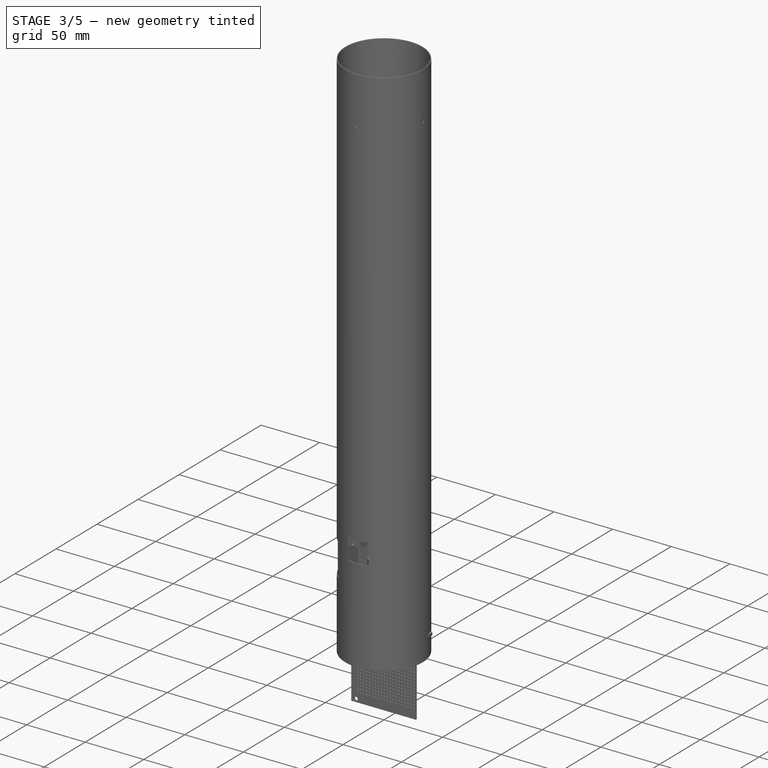
[diagram: stage 3 of 5 — iso view after this stage's code; geometry added in this stage tinted green]
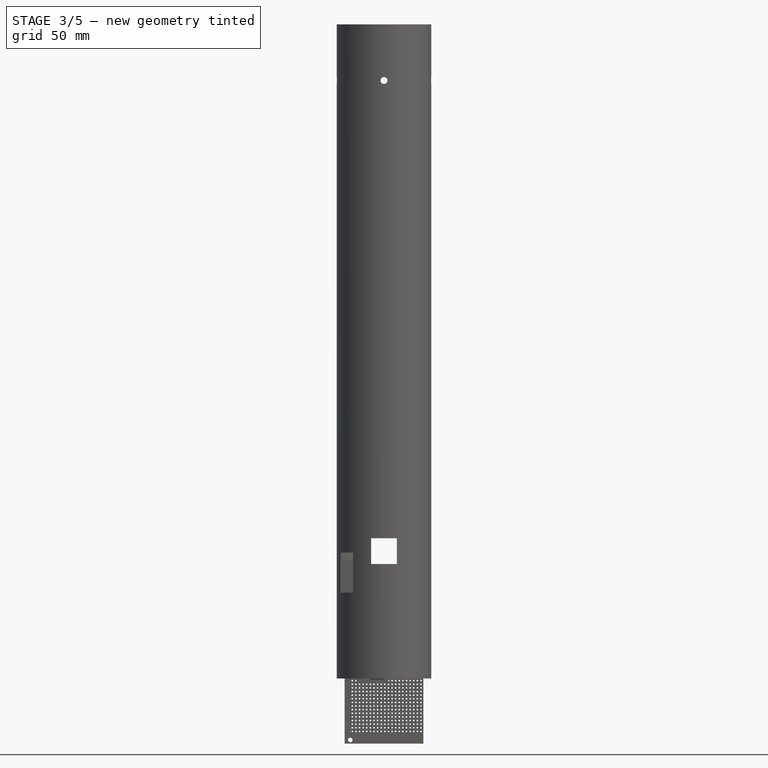
[diagram: stage 3 of 5 — front view after this stage's code; geometry added in this stage tinted green]
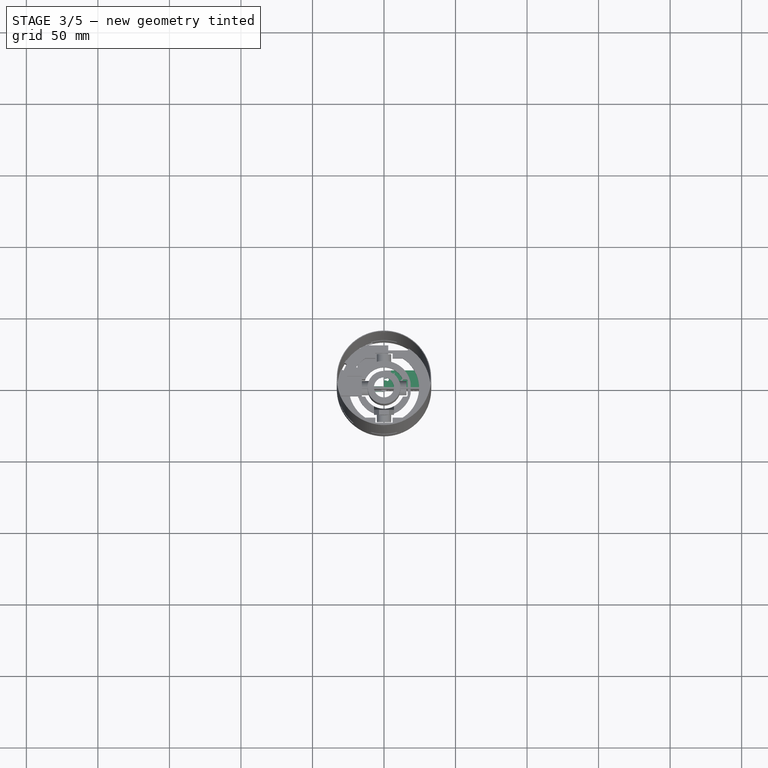
[diagram: stage 3 of 5 — top view after this stage's code; geometry added in this stage tinted green]
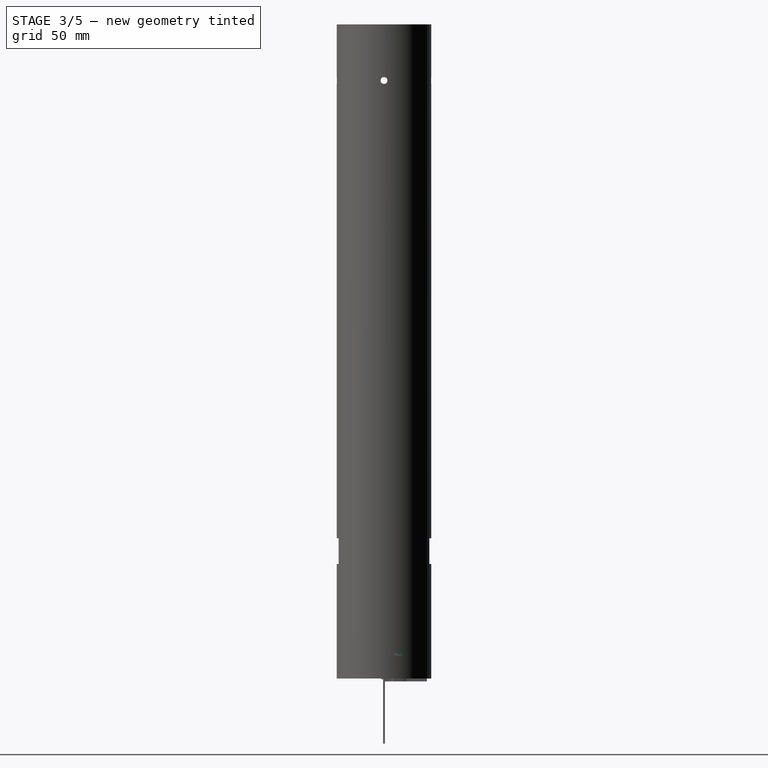
[diagram: stage 3 of 5 — right view after this stage's code; geometry added in this stage tinted green]
FEATURE [Part::Box] Box007  label="UpperCutB001"
  AttacherType = Attacher::AttachEngine3D
  Height = 4.3
  Length = 5
  Width = 12.7
FEATURE [Part::Box] Box008  label="LowerCutF001"
  AttacherType = Attacher::AttachEngine3D
  Height = 16
  Length = 5
  Placement = pos=(27.4,0,0) rot=(0,0,1;0rad)
  Width = 12.7
FEATURE [Part::Box] Box009  label="UpperCutF001"
  AttacherType = Attacher::AttachEngine3D
  Height = 4.3
  Length = 5
  Placement = pos=(27.4,0,0) rot=(0,0,1;0rad)
  Width = 12.7
FEATURE [Part::Cylinder] Cylinder009  label="CableY001"
  Angle = 360
  AttacherType = Attacher::AttachEngine3D
  Height = 10
  Placement = pos=(0,-1.3,0) rot=(0,-1,0;1.5708rad)
  Radius = 0.65
FEATURE [Part::Cylinder] Cylinder010  label="Zylinder002"
  Angle = 360
  AttacherType = Attacher::AttachEngine3D
  Height = 10
  Radius = 1
FEATURE [Part::Cylinder] Cylinder011  label="CableR001"
  Angle = 360
  AttacherType = Attacher::AttachEngine3D
  Height = 10
  Placement = pos=(0,0,0) rot=(0,-1,0;1.5708rad)
  Radius = 0.65
FEATURE [Part::Cylinder] Cylinder012  label="BigShaft001"
  Angle = 360
  AttacherType = Attacher::AttachEngine3D
  Height = 26.8
  Placement = pos=(10.8,6.35,0) rot=(0,0,1;0rad)
  Radius = 5.8
FEATURE [Part::Box] Box010  label="LowerCutB001"
  AttacherType = Attacher::AttachEngine3D
  Height = 16
  Length = 5
  Width = 12.7
FEATURE [Part::Box] Box011  label="Body001"
  AttacherType = Attacher::AttachEngine3D
  Height = 22.5
  Length = 32.4
  Width = 12.7
FEATURE [Part::Cylinder] Cylinder013  label="SideAxis001"
  Angle = 360
  AttacherType = Attacher::AttachEngine3D
  Height = 26.8
  Placement = pos=(17,6.35,0) rot=(0,0,1;0rad)
  Radius = 2.5
FEATURE [Part::Cylinder] Cylinder014  label="CableB001"
  Angle = 360
  AttacherType = Attacher::AttachEngine3D
  Height = 10
  Placement = pos=(0,1.3,0) rot=(0,-1,0;1.5708rad)
  Radius = 0.65
FEATURE [Part::Cylinder] Cylinder015  label="Zylinder003"
  Angle = 360
  AttacherType = Attacher::AttachEngine3D
  Height = 10
  Radius = 1
FEATURE [Part::MultiFuse] Fusion018  label="UpperCuts001"
  Placement = pos=(0,0,18.2) rot=(0,0,1;0rad)
  Shapes = -> [Box007,Box009]
FEATURE [Part::Box] Box012  label="Würfel002"
  AttacherType = Attacher::AttachEngine3D
  Height = 10
  Length = 10
  Placement = pos=(-10,-0.55,0) rot=(0,0,1;0rad)
  Width = 1.1
FEATURE [Part::MultiFuse] Fusion016  label="DrillSlotB001"
  Placement = pos=(2.4,0,0) rot=(0,0,1;0rad)
  Shapes = -> [Box012,Cylinder015]
FEATURE [Part::Box] Box013  label="Würfel003"
  AttacherType = Attacher::AttachEngine3D
  Height = 10
  Length = 10
  Placement = pos=(-10,-0.55,0) rot=(0,0,1;0rad)
  Width = 1.1
FEATURE [Part::MultiFuse] Fusion012  label="DrillSlotF001"
  Placement = pos=(30,0,0) rot=(0,0,1;3.14159rad)
  Shapes = -> [Box013,Cylinder010]
FEATURE [Part::MultiFuse] Fusion017  label="DrillSlots001"
  Placement = pos=(0,6.35,13) rot=(0,0,1;0rad)
  Shapes = -> [Fusion012,Fusion016]
FEATURE [Part::Cut] Cut007
  Base = -> Box011
  Tool = -> Box008
FEATURE [Part::Cut] Cut004  label="LowerBody001"
  Base = -> Cut007
  Tool = -> Box010
FEATURE [Part::Cut] Cut005  label="BasicBody001"
  Base = -> Cut004
  Tool = -> Fusion018
FEATURE [Part::Cut] Cut006  label="CutBody001"
  Base = -> Cut005
  Tool = -> Fusion017
FEATURE [Sketcher::SketchObject] Sketch069  label="[Outer Gimbal SPR] Servo Pushrod Diameter"
  FullyConstrained = false
  MapMode = 5
  Placement = pos=(0,0,0) rot=(0.57735,0.57735,0.57735;2.0944rad)
  Support = -> [YZ_Plane017]
  expr: .AttachmentOffset.Base.x = 0
  sketch-geometry (1):
    g0: Circle CenterX=0 CenterY=0 CenterZ=0 NormalX=0 NormalY=0 NormalZ=1 AngleXU=0 Radius=0.6
  constraints (2):
    c: Coincident(g0,g-1)
    c: Diameter(g0) = 1.2
FEATURE [Sketcher::SketchObject] Sketch070  label="[Outer Gimbal SPR] Servo Pushrod Path"
  FullyConstrained = false
  MapMode = 5
  Support = -> [XY_Plane017]
  sketch-geometry (5):
    g0: LineSegment StartX=-26.7 StartY=4.4 StartZ=0 EndX=-23.5 EndY=4.4 EndZ=0
    g1: LineSegment StartX=-22.3 StartY=3.2 StartZ=0 EndX=-22.3 EndY=1.2 EndZ=0
    g2: LineSegment StartX=-21.1 StartY=0 StartZ=0 EndX=10 EndY=0 EndZ=0
    g3: ArcOfCircle CenterX=-21.1 CenterY=1.2 CenterZ=0 NormalX=0 NormalY=0 NormalZ=1 AngleXU=0 Radius=1.2 StartAngle=3.14159 EndAngle=4.71239
    g4: ArcOfCircle CenterX=-23.5 CenterY=3.2 CenterZ=0 NormalX=0 NormalY=0 NormalZ=1 AngleXU=0 Radius=1.2 StartAngle=0 EndAngle=1.5708
  constraints (14):
    c: Horizontal(g0)
    c: Horizontal(g2)
    c: Vertical(g1)
    c: Tangent(g1,g3) = -1.5708
    c: Tangent(g2,g3) = -1.5708
    c: DistanceX(g1,g2) = 32.3
    c: DistanceY(g2,g3) = 1.2
    c: Tangent(g0,g4) = 1.5708
    c: Tangent(g1,g4) = 1.5708
    c: DistanceY(g4,g0) = 1.2
    c: DistanceX(g0,g1) = 4.4
    c: DistanceY(g2,g0) = 4.4
    c: DistanceX(g-1,g2) = 10
    c: PointOnObject(g2,g-1)
FEATURE [PartDesign::AdditivePipe] AdditivePipe
  AuxilleryCurvelinear = true
  AuxillerySpineTangent = false
  Binormal = (0,0,0)
  Mode = 0
  Placement = pos=(0,0,0) rot=(0.57735,0.57735,0.57735;2.0944rad)
  Profile = -> Sketch069
  Spine = -> Sketch070
  SpineTangent = false
  Transformation = 0
  Transition = 0
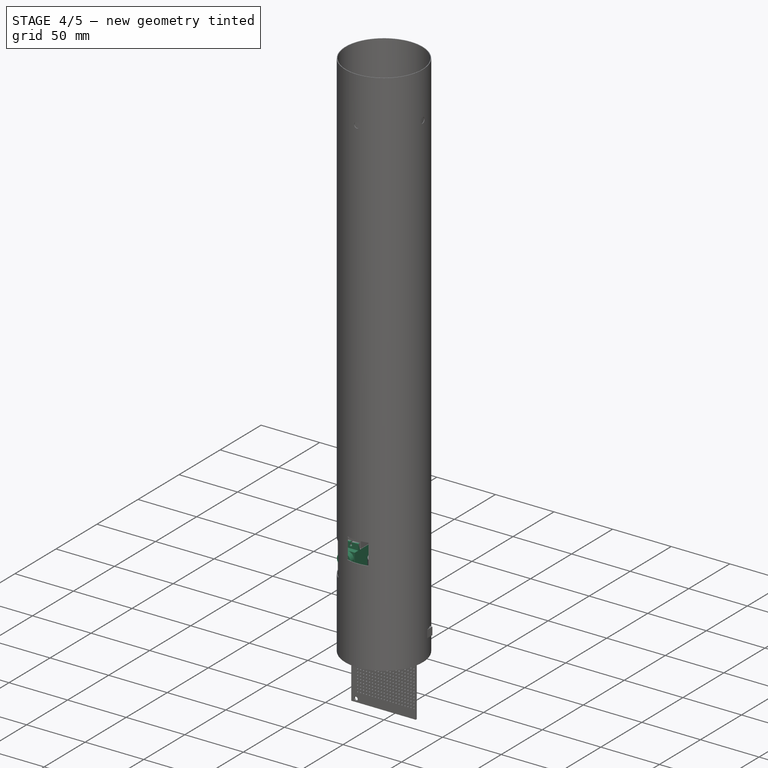
[diagram: stage 4 of 5 — iso view after this stage's code; geometry added in this stage tinted green]
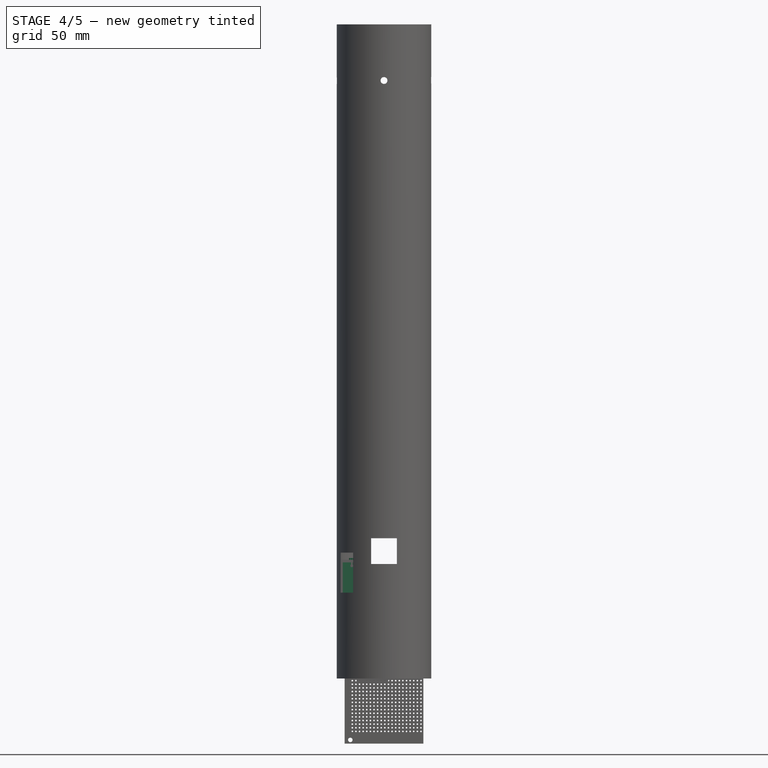
[diagram: stage 4 of 5 — front view after this stage's code; geometry added in this stage tinted green]
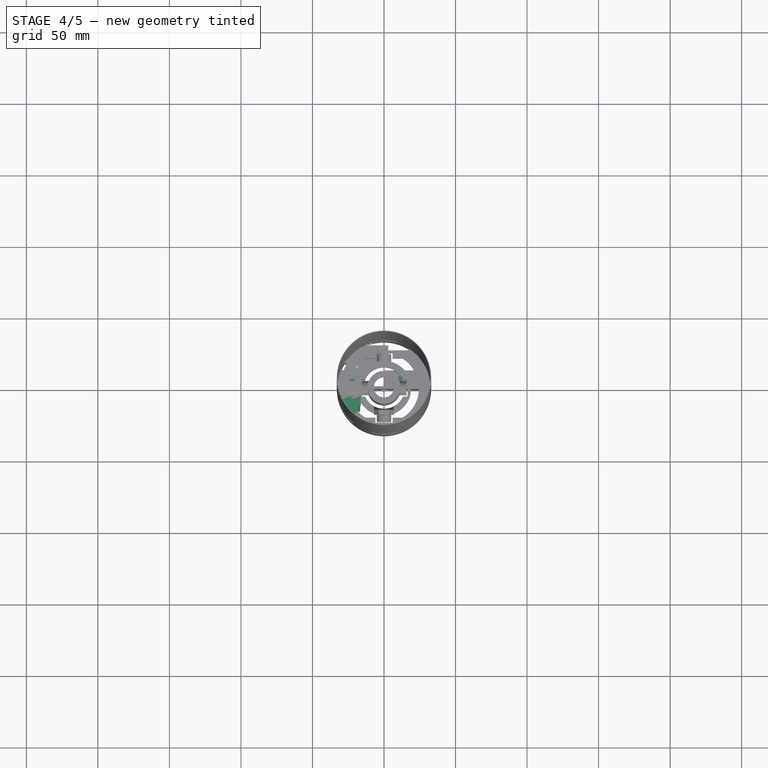
[diagram: stage 4 of 5 — top view after this stage's code; geometry added in this stage tinted green]
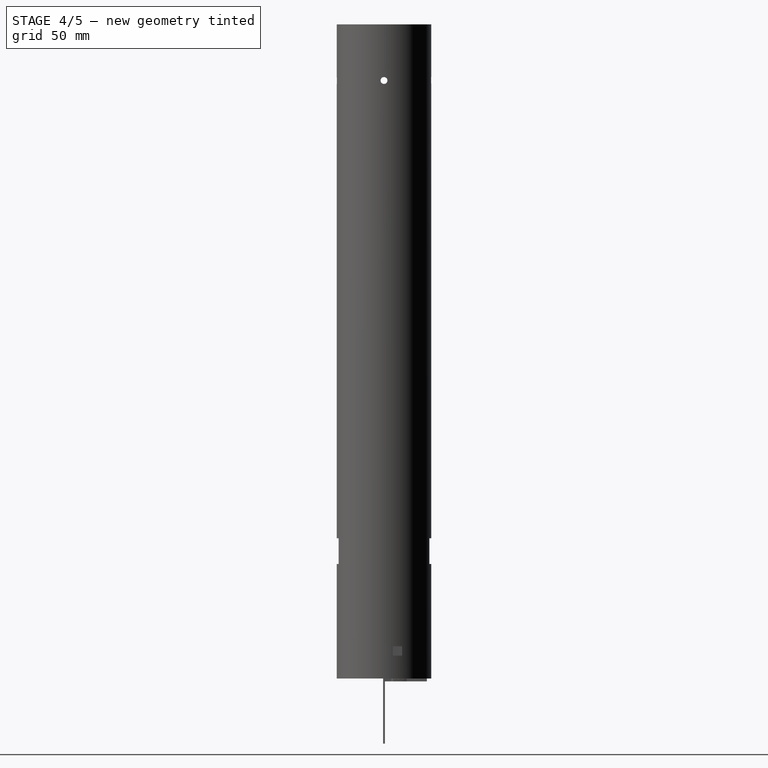
[diagram: stage 4 of 5 — right view after this stage's code; geometry added in this stage tinted green]
FEATURE [Part::Box] Box006  label="Würfel001"
  AttacherType = Attacher::AttachEngine3D
  Height = 10
  Length = 10
  Placement = pos=(-10,-0.55,0) rot=(0,0,1;0rad)
  Width = 1.1
FEATURE [Part::Box] Box005  label="Würfel"
  AttacherType = Attacher::AttachEngine3D
  Height = 10
  Length = 10
  Placement = pos=(-10,-0.55,0) rot=(0,0,1;0rad)
  Width = 1.1
FEATURE [Part::Cylinder] Cylinder007  label="Zylinder001"
  Angle = 360
  AttacherType = Attacher::AttachEngine3D
  Height = 10
  Radius = 1
FEATURE [Part::Cylinder] Cylinder  label="BigShaft"
  Angle = 360
  AttacherType = Attacher::AttachEngine3D
  Height = 26.8
  Placement = pos=(10.8,6.35,0) rot=(0,0,1;0rad)
  Radius = 5.8
FEATURE [Part::Cylinder] Cylinder001  label="Axis"
  Angle = 360
  AttacherType = Attacher::AttachEngine3D
  Height = 29.4
  Placement = pos=(10.8,6.35,0) rot=(0,0,1;0rad)
  Radius = 2.3
FEATURE [Part::Cylinder] Cylinder003  label="CableR"
  Angle = 360
  AttacherType = Attacher::AttachEngine3D
  Height = 10
  Placement = pos=(0,0,0) rot=(0,-1,0;1.5708rad)
  Radius = 0.65
FEATURE [Part::Box] Box003  label="UpperCutB"
  AttacherType = Attacher::AttachEngine3D
  Height = 4.3
  Length = 5
  Width = 12.7
FEATURE [Part::Cylinder] Cylinder004  label="CableB"
  Angle = 360
  AttacherType = Attacher::AttachEngine3D
  Height = 10
  Placement = pos=(0,1.3,0) rot=(0,-1,0;1.5708rad)
  Radius = 0.65
FEATURE [Part::Cylinder] Cylinder002  label="SideAxis"
  Angle = 360
  AttacherType = Attacher::AttachEngine3D
  Height = 26.8
  Placement = pos=(17,6.35,0) rot=(0,0,1;0rad)
  Radius = 2.5
FEATURE [Part::Box] Box001  label="LowerCutB"
  AttacherType = Attacher::AttachEngine3D
  Height = 16
  Length = 5
  Width = 12.7
FEATURE [Part::Cylinder] Cylinder006  label="Zylinder"
  Angle = 360
  AttacherType = Attacher::AttachEngine3D
  Height = 10
  Radius = 1
FEATURE [Part::Box] Box  label="Body"
  AttacherType = Attacher::AttachEngine3D
  Height = 22.5
  Length = 32.4
  Width = 12.7
FEATURE [Part::MultiFuse] Fusion004  label="InternalAxes"
  Shapes = -> [Cylinder,Cylinder002]
FEATURE [Part::Box] Box002  label="LowerCutF"
  AttacherType = Attacher::AttachEngine3D
  Height = 16
  Length = 5
  Placement = pos=(27.4,0,0) rot=(-0.707107,0,0.707107;0rad)
  Width = 12.7
FEATURE [Part::Cut] Cut
  Base = -> Box
  Tool = -> Box002
FEATURE [Part::Cut] Cut001  label="LowerBody"
  Base = -> Cut
  Tool = -> Box001
FEATURE [Part::MultiFuse] Fusion007  label="DrillSlotB"
  Placement = pos=(2.4,0,0) rot=(0,0,1;0rad)
  Shapes = -> [Box005,Cylinder006]
FEATURE [Part::MultiFuse] Fusion005  label="Axes"
  Shapes = -> [Fusion004,Cylinder001]
FEATURE [Part::Cylinder] Cylinder008  label="Axis001"
  Angle = 360
  AttacherType = Attacher::AttachEngine3D
  Height = 29.4
  Placement = pos=(10.8,6.35,0) rot=(0,0,1;0rad)
  Radius = 2.3
FEATURE [Part::MultiFuse] Fusion014  label="InternalAxes001"
  Shapes = -> [Cylinder012,Cylinder013]
FEATURE [Part::MultiFuse] Fusion015  label="Axes001"
  Shapes = -> [Fusion014,Cylinder008]
FEATURE [Part::MultiFuse] Fusion013  label="Cables001"
  Placement = pos=(7,6.35,4.65) rot=(0,0,1;0rad)
  Shapes = -> [Cylinder009,Cylinder011,Cylinder014]
FEATURE [Part::MultiFuse] Fusion011  label="Micro Servo (Tower Pro SG92R) 002"
  Placement = pos=(-28.85,9.85,81.2) rot=(0.57735,0.57735,-0.57735;2.0944rad)
  Shapes = -> [Fusion015,Fusion013,Cut006]
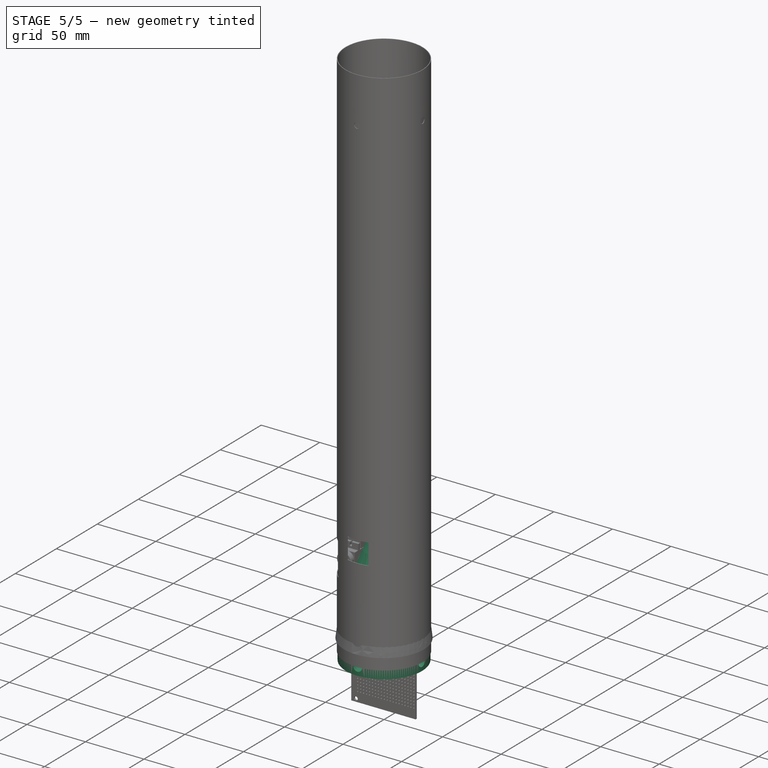
[diagram: stage 5 of 5 — iso view after this stage's code; geometry added in this stage tinted green]
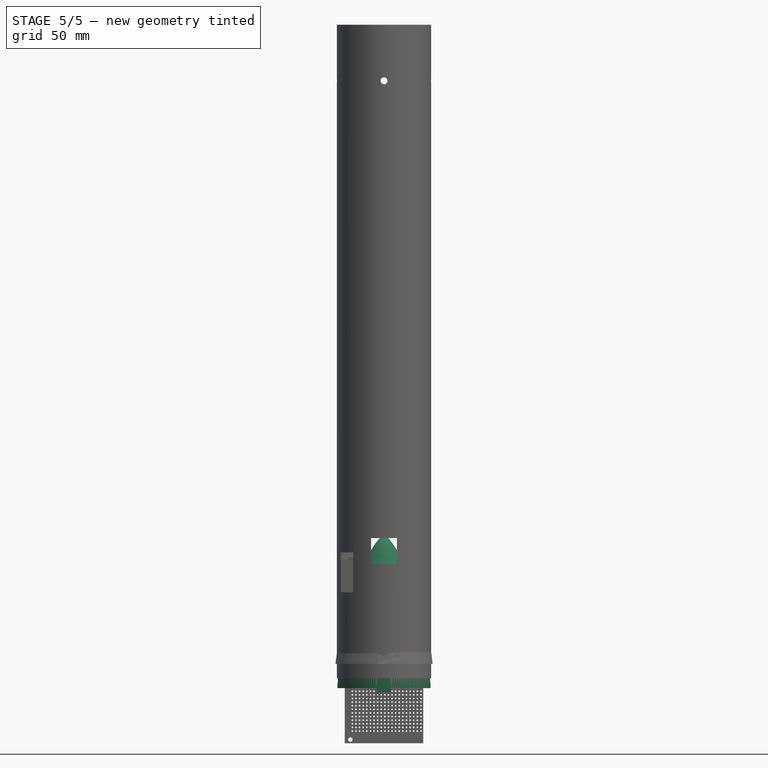
[diagram: stage 5 of 5 — front view after this stage's code; geometry added in this stage tinted green]
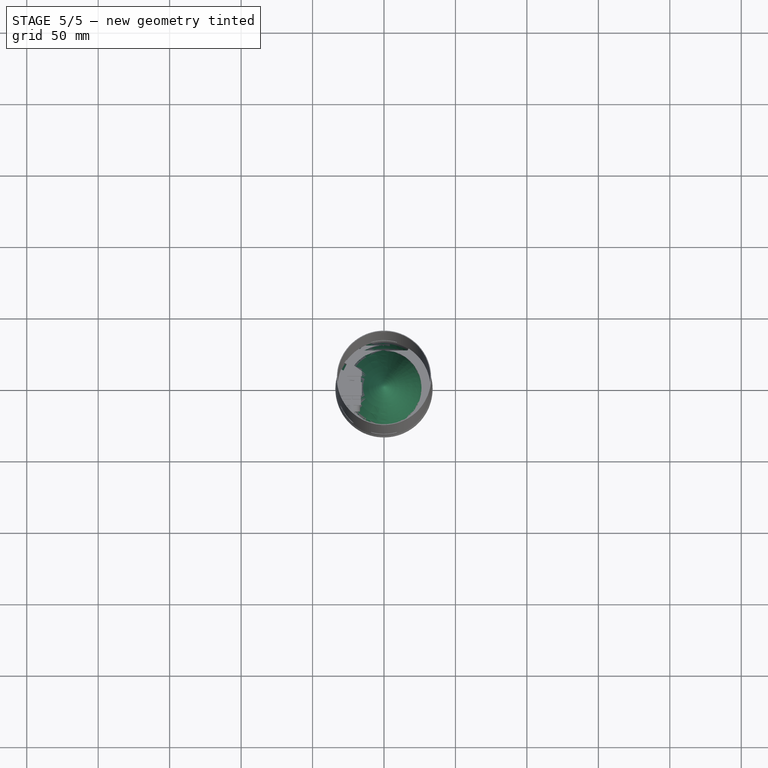
[diagram: stage 5 of 5 — top view after this stage's code; geometry added in this stage tinted green]
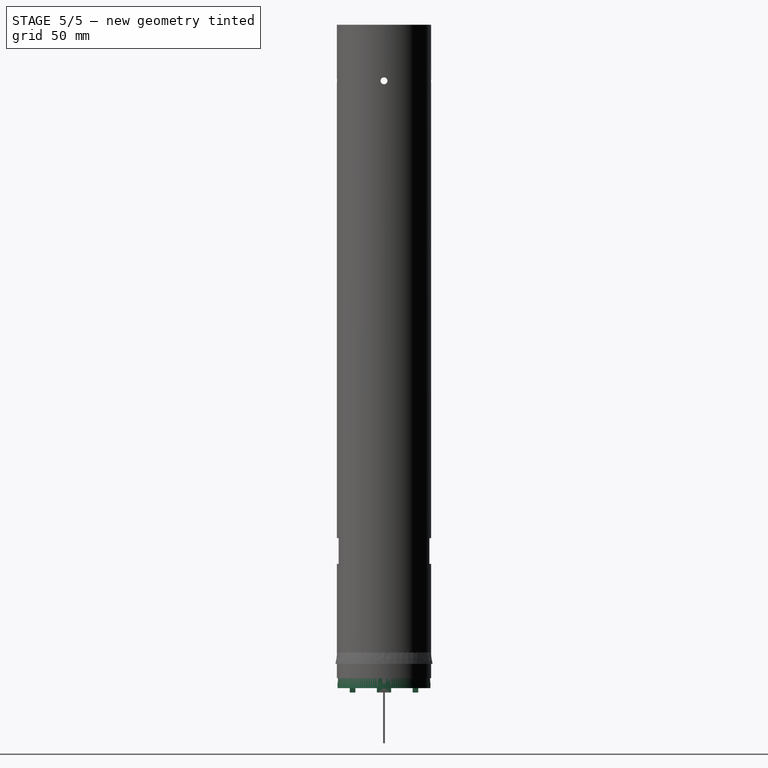
[diagram: stage 5 of 5 — right view after this stage's code; geometry added in this stage tinted green]
FEATURE [Sketcher::SketchObject] Sketch007  label="[Nose Cone] Nose Cone Shape"
  FullyConstrained = false
  MapMode = 5
  Placement = pos=(0,0,0) rot=(1,0,0;1.5708rad)
  Support = -> [XZ_Plane005]
  sketch-geometry (21):
    g0: LineSegment StartX=0 StartY=0 StartZ=0 EndX=31.5 EndY=0 EndZ=0
    g1: LineSegment StartX=31.5 StartY=0 StartZ=0 EndX=31.5 EndY=10 EndZ=0
    g2: LineSegment StartX=31.5 StartY=10 StartZ=0 EndX=34 EndY=10 EndZ=0
    g3: LineSegment StartX=0 StartY=0 StartZ=0 EndX=0 EndY=4.5 EndZ=0
    g4: LineSegment StartX=0 StartY=4.5 StartZ=0 EndX=27.5 EndY=4.5 EndZ=0
    g5: LineSegment StartX=0 StartY=100 StartZ=0 EndX=0 EndY=94 EndZ=0
    g6-g9: Circle x4 (B-spline internal-alignment scaffolding for g10; pole/knot coordinates omitted)
    g10: BSplineCurve PolesCount=4 KnotsCount=2 Degree=3 IsPeriodic=0
    g11: GeomPoint X=0 Y=100 Z=0
    g12: GeomPoint X=34 Y=10 Z=0
    g13-g16: Circle x4 (B-spline internal-alignment scaffolding for g17; pole/knot coordinates omitted)
    g17: BSplineCurve PolesCount=4 KnotsCount=2 Degree=3 IsPeriodic=0
    g18: GeomPoint X=0 Y=94 Z=0
    g19: GeomPoint X=27.5 Y=10 Z=0
    g20: LineSegment StartX=27.5 StartY=10 StartZ=0 EndX=27.5 EndY=4.5 EndZ=0
  constraints (48):
    c: Coincident(g0,g-1)
    c: Horizontal(g0)
    c: Coincident(g1,g0)
    c: Vertical(g1)
    c: Coincident(g2,g1)
    c: Horizontal(g2)
    c: DistanceX(g0,g0) = 31.5
    c: DistanceX(g0,g2) = 34
    c: DistanceY(g0,g5) = 100
    c: DistanceY(g1,g1) = 10
    c: PointOnObject(g5,g-2)
    c: Coincident(g3,g0)
    c: PointOnObject(g3,g-2)
    c: Coincident(g4,g3)
    c: Horizontal(g4)
    c: Vertical(g5)
    c: DistanceY(g5,g5) = 6
    c: DistanceX(g4,g2) = 6.5
    c: Coincident(g10,g5)
    c: Weight(g6) = 1
    c: Equal(g6,g7)
    c: Equal(g6,g8)
    c: Equal(g6,g9)
    c: Coincident(g10,g2)
    c: InternalAlignment(g6-g9 -> g10) x4
    c: InternalAlignment(g11,g10)
    c: InternalAlignment(g12,g10)
    c: DistanceY(g7,g5) = 2
    c: DistanceX(g5,g7) = 8
    c: DistanceY(g2,g8) = 42
    c: DistanceX(g8,g2) = 4
    c: Coincident(g17,g5)
    c: Weight(g13) = 1
    c: Equal(g13,g14)
    c: Equal(g13,g15)
    c: Equal(g13,g16)
    c: InternalAlignment(g13-g16 -> g17) x4
    c: InternalAlignment(g18,g17)
    c: InternalAlignment(g19,g17)
    c: DistanceX(g14,g7) = 0
    c: DistanceY(g8,g15) = 0
    c: DistanceX(g15,g8) = 7
    c: DistanceY(g14,g7) = 12
    c: DistanceY(g0,g3) = 4.5
    c: Coincident(g20,g17)
    c: Coincident(g20,g4)
    c: Vertical(g20)
    c: DistanceY(g1,g17) = 0
FEATURE [Sketcher::SketchObject] Sketch008  label="Motor Tube Sketch"
  FullyConstrained = false
  MapMode = 5
  Support = -> [XY_Plane006]
  sketch-geometry (2):
    g0: Circle CenterX=0 CenterY=0 CenterZ=0 NormalX=0 NormalY=0 NormalZ=1 AngleXU=0 Radius=9
    g1: Circle CenterX=0 CenterY=0 CenterZ=0 NormalX=0 NormalY=0 NormalZ=1 AngleXU=0 Radius=9.35
  constraints (4):
    c: Coincident(g0,g-1)
    c: Coincident(g1,g0)
    c: Diameter(g0) = 18
    c: Diameter(g1) = 18.7
FEATURE [PartDesign::Pad] Pad003  label="Motor Tube Pad"
  AllowMultiFace = false
  Direction = (1,1,1)
  Length = 69.9
  Length2 = 100
  Profile = -> Sketch008
  Type = 0
FEATURE [Sketcher::SketchObject] Sketch009  label="[Parachute Holding] Base"
  FullyConstrained = false
  MapMode = 5
  Support = -> [XY_Plane007]
  sketch-geometry (1):
    g0: Circle CenterX=0 CenterY=0 CenterZ=0 NormalX=0 NormalY=0 NormalZ=1 AngleXU=0 Radius=32.5
  constraints (2):
    c: Coincident(g0,g-1)
    c: Diameter(g0) = 65
FEATURE [PartDesign::Pad] Pad
  AllowMultiFace = false
  Direction = (1,1,1)
  Length = 14
  Length2 = 100
  Midplane = true
  Profile = -> Sketch009
  Type = 0
FEATURE [Sketcher::SketchObject] Sketch011  label="M5 Insert Sketch"
  FullyConstrained = false
  MapMode = 5
  Placement = pos=(0,32.5,0) rot=(0,0.707107,0.707107;3.14159rad)
  sketch-geometry (1):
    g0: Circle CenterX=0 CenterY=0 CenterZ=0 NormalX=0 NormalY=0 NormalZ=1 AngleXU=0 Radius=3.9
  constraints (2):
    c: Coincident(g0,g-1)
    c: Diameter(g0) = 7.8
FEATURE [PartDesign::Pocket] Pocket001
  AllowMultiFace = false
  BaseFeature = -> Pad
  Length = 10.05
  Length2 = 100
  Profile = -> Sketch011
  Type = 0
FEATURE [PartDesign::PolarPattern] PolarPattern
  Angle = 360
  Axis = -> Z_Axis007
  BaseFeature = -> Pocket001
  Occurrences = 4
  Originals = -> [Pocket001]
FEATURE [Part::Feature] Part__Feature  label="Compression Spring (1692K32) 001"
  Placement = pos=(0,-23,17) rot=(0.57735,-0.57735,-0.57735;2.0944rad)
  shape: bbox 15.09 x 15.11 x 26.14 mm, 8 faces (baked)
FEATURE [Part::Feature] Part__Feature001  label="Compression Spring (1692K32) 002"
  Placement = pos=(0,23,17) rot=(0.57735,-0.57735,-0.57735;2.0944rad)
  shape: bbox 15.09 x 15.11 x 26.14 mm, 8 faces (baked)
FEATURE [Sketcher::SketchObject] Sketch012  label="[Parachute Holding] Parachute Seperator"
  FullyConstrained = false
  MapMode = 5
  Placement = pos=(0,0,7) rot=(0,0,1;0rad)
  Support = -> [PolarPattern]
  sketch-geometry (4):
    g0: LineSegment StartX=31.7372 StartY=-7 StartZ=0 EndX=-31.7372 EndY=-7 EndZ=0
    g1: LineSegment StartX=31.229 StartY=-9 StartZ=0 EndX=-31.229 EndY=-9 EndZ=0
    g2: ArcOfCircle CenterX=0 CenterY=0 CenterZ=0 NormalX=0 NormalY=0 NormalZ=1 AngleXU=0 Radius=32.5 StartAngle=3.35868 EndAngle=3.42218
    g3: ArcOfCircle CenterX=0 CenterY=0 CenterZ=0 NormalX=0 NormalY=0 NormalZ=1 AngleXU=0 Radius=32.5 StartAngle=6.00259 EndAngle=6.0661
  constraints (11):
    c: Symmetric(g0,g0,g-2)
    c: Symmetric(g1,g1,g-2)
    c: DistanceY(g1,g-1) = 9
    c: DistanceY(g1,g0) = 2
    c: Coincident(g2,g-1)
    c: Coincident(g2,g1)
    c: Coincident(g2,g0)
    c: Coincident(g3,g2)
    c: Coincident(g3,g1)
    c: Coincident(g3,g0)
    c: Distance(g0,g2) = 32.5
FEATURE [PartDesign::Pad] Pad004
  AllowMultiFace = false
  BaseFeature = -> PolarPattern
  Direction = (1,1,1)
  Length = 20
  Length2 = 100
  Profile = -> Sketch012
  Type = 0
FEATURE [PartDesign::Revolution] Revolution001  label="Revolution"
  AllowMultiFace = false
  Angle = 360
  Axis = (-3e-16,3e-16,1)
  Base = (0,0,0)
  Placement = pos=(0,0,0) rot=(1,0,0;1.5708rad)
  Profile = -> Sketch007
  ReferenceAxis = -> Z_Axis005
FEATURE [PartDesign::Pad] Pad006
  AllowMultiFace = false
  BaseFeature = -> Revolution001
  Direction = (1,1,1)
  Length = 10
  Length2 = 100
  Placement = pos=(0,0,0) rot=(1,0,0;1.5708rad)
  Profile = -> Sketch020
  Type = 0
FEATURE [Sketcher::SketchObject] Sketch021  label="[Nose Cone] Parachute and Shock Cord Hole"
  FullyConstrained = false
  MapMode = 5
  Placement = pos=(0,-24,5.3e-15) rot=(1,0,0;1.5708rad)
  Support = -> [Pad006]
  sketch-geometry (1):
    g0: Circle CenterX=0 CenterY=-5 CenterZ=0 NormalX=0 NormalY=0 NormalZ=1 AngleXU=0 Radius=2
  constraints (3):
    c: DistanceY(g0,g-1) = 5
    c: Diameter(g0) = 4
    c: PointOnObject(g0,g-2)
FEATURE [PartDesign::Pocket] Pocket007
  AllowMultiFace = false
  BaseFeature = -> Pad006
  Length = 5
  Length2 = 100
  Placement = pos=(0,0,0) rot=(1,0,0;1.5708rad)
  Profile = -> Sketch021
  Type = 1
FEATURE [Part::Feature] Part__Feature014  label="Compression Spring (9657K391) 001"
  Placement = pos=(0,22,7) rot=(1,0,0;3.14159rad)
  shape: bbox 13.48 x 13.49 x 51.95 mm, 10 faces (baked)
FEATURE [Part::Feature] Part__Feature015  label="Compression Spring (9657K391) 002"
  Placement = pos=(0,-22,7) rot=(1,0,0;3.14159rad)
  shape: bbox 13.48 x 13.49 x 51.95 mm, 10 faces (baked)
FEATURE [App::DocumentObjectGroup] Group002  label="Springs"
  Group = -> [Part__Feature,Part__Feature001,Part__Feature014,Part__Feature015]
FEATURE [PartDesign::PolarPattern] PolarPattern002
  Angle = 360
  Axis = -> Sketch012 [N_Axis]
  BaseFeature = -> Pad004
  Occurrences = 2
  Originals = -> [Pad004]
FEATURE [PartDesign::Pocket] Pocket014
  AllowMultiFace = false
  BaseFeature = -> PolarPattern002
  Length = 5
  Length2 = 100
  Profile = -> Sketch013
  Type = 1
FEATURE [PartDesign::Pad] Pad009
  AllowMultiFace = false
  BaseFeature = -> Pocket014
  Direction = (1,1,1)
  Length = 20
  Length2 = 100
  Profile = -> Sketch015
  Type = 0
FEATURE [PartDesign::Body] Body006  label="Parachute Holding"
  Group = -> [Sketch009,Pad,Sketch011,Pocket001,PolarPattern,Sketch012,Pad004,Sketch013,Sketch015,PolarPattern002,Pocket014,Pad009]
  Origin = -> Origin007
  Tip = -> Pad009
FEATURE [App::Part] Part001  label="Parachute Deployment"
  Group = -> [Body006,Part__Feature,Part__Feature001,Part__Feature006,Part__Feature007,Part__Feature008,Part__Feature009,Part__Feature010,Part__Feature011,Part__Feature012,Part__Feature013,Group,Group001,Group002,Part__Feature014,Part__Feature015]
  Origin = -> Origin009
  Placement = pos=(0,0,418) rot=(0,0,1;0rad)
FEATURE [Sketcher::SketchObject] Sketch026  label="[Nose Cone] Hold Down Mount"
  FullyConstrained = false
  MapMode = 5
  Placement = pos=(0,0,0) rot=(1,0,0;3.14159rad)
  Support = -> [Pocket007]
  sketch-geometry (4):
    g0: LineSegment StartX=-3 StartY=5 StartZ=0 EndX=3 EndY=5 EndZ=0
    g1: LineSegment StartX=3 StartY=5 StartZ=0 EndX=3 EndY=-5 EndZ=0
    g2: LineSegment StartX=3 StartY=-5 StartZ=0 EndX=-3 EndY=-5 EndZ=0
    g3: LineSegment StartX=-3 StartY=-5 StartZ=0 EndX=-3 EndY=5 EndZ=0
  constraints (11):
    c: Coincident(g0,g1)
    c: Coincident(g1,g2)
    c: Coincident(g2,g3)
    c: Coincident(g3,g0)
    c: Horizontal(g0)
    c: Horizontal(g2)
    c: Vertical(g1)
    c: Vertical(g3)
    c: Symmetric(g0,g1,g-1)
    c: DistanceY(g3,g3) = 10
    c: DistanceX(g0,g0) = 6
FEATURE [PartDesign::Pad] Pad010
  AllowMultiFace = false
  BaseFeature = -> Pocket007
  Direction = (1,1,1)
  Length = 10
  Length2 = 100
  Placement = pos=(0,0,0) rot=(1,0,0;1.5708rad)
  Profile = -> Sketch026
  Type = 0
FEATURE [Sketcher::SketchObject] Sketch027  label="[Nose Cone] Hold Down Hole"
  FullyConstrained = false
  MapMode = 5
  Placement = pos=(-3,0,-1e-15) rot=(0.707107,0,-0.707107;3.14159rad)
  Support = -> [Pad010]
  sketch-geometry (1):
    g0: Circle CenterX=5 CenterY=0 CenterZ=0 NormalX=0 NormalY=0 NormalZ=1 AngleXU=0 Radius=2
  constraints (3):
    c: PointOnObject(g0,g-1)
    c: Diameter(g0) = 4
    c: DistanceX(g-1,g0) = 5
FEATURE [PartDesign::Pocket] Pocket015
  AllowMultiFace = false
  BaseFeature = -> Pad010
  Length = 5
  Length2 = 100
  Placement = pos=(0,0,0) rot=(1,0,0;1.5708rad)
  Profile = -> Sketch027
  Type = 1
FEATURE [Part::Cylinder] Cylinder005  label="CableY"
  Angle = 360
  AttacherType = Attacher::AttachEngine3D
  Height = 10
  Placement = pos=(0,-1.3,0) rot=(0,-1,0;1.5708rad)
  Radius = 0.65
FEATURE [Part::Box] Box004  label="UpperCutF"
  AttacherType = Attacher::AttachEngine3D
  Height = 4.3
  Length = 5
  Placement = pos=(27.4,0,0) rot=(0,0,1;0rad)
  Width = 12.7
FEATURE [Part::MultiFuse] Fusion008  label="DrillSlotF"
  Placement = pos=(30,0,0) rot=(0,0,1;3.14159rad)
  Shapes = -> [Box006,Cylinder007]
FEATURE [Part::MultiFuse] Fusion  label="UpperCuts"
  Placement = pos=(0,0,18.2) rot=(0,0,1;0rad)
  Shapes = -> [Box003,Box004]
FEATURE [Part::MultiFuse] Fusion003  label="Cables"
  Placement = pos=(7,6.35,4.65) rot=(0,0,1;0rad)
  Shapes = -> [Cylinder005,Cylinder003,Cylinder004]
FEATURE [Part::Cut] Cut002  label="BasicBody"
  Base = -> Cut001
  Tool = -> Fusion
FEATURE [Part::MultiFuse] Fusion009  label="DrillSlots"
  Placement = pos=(0,6.35,13) rot=(0,0,1;0rad)
  Shapes = -> [Fusion008,Fusion007]
FEATURE [Part::Cut] Cut003  label="CutBody"
  Base = -> Cut002
  Tool = -> Fusion009
FEATURE [Part::MultiFuse] Fusion010  label="Micro Servo (Tower Pro SG92R) 001"
  Placement = pos=(-12.75,16.95,31.6) rot=(0,1,0;1.5708rad)
  Shapes = -> [Fusion005,Fusion003,Cut003]
FEATURE [Part::Feature] Part__Feature016  label="Tower Pro Servo Horn 001"
  Placement = pos=(16.84,23.22,20.72) rot=(0.707107,0.707107,0;3.14159rad)
  shape: bbox 3.7 x 7.2 x 21.2 mm, 20 faces (baked)
FEATURE [Part::Feature] Part__Feature017  label="Tower Pro Servo Horn 002"
  Placement = pos=(-22.25,-19.55,70.5) rot=(1,0,0;3.14159rad)
  shape: bbox 7.2 x 3.7 x 21.2 mm, 20 faces (baked)
FEATURE [App::DocumentObjectGroup] Group003  label="Outer Gimbal Servo"
  Group = -> [Fusion011,Part__Feature017]
FEATURE [Sketcher::SketchObject] Sketch038
  FullyConstrained = false
  MapMode = 5
  Support = -> [XY_Plane013]
  sketch-geometry (1):
    g0: Circle CenterX=0 CenterY=0 CenterZ=0 NormalX=0 NormalY=0 NormalZ=1 AngleXU=0 Radius=8.75
  constraints (2):
    c: Coincident(g0,g-1)
    c: Diameter(g0) = 17.5
FEATURE [PartDesign::Pad] Pad019
  Direction = (1,1,1)
  Length = 69.5
  Length2 = 100
  Profile = -> Sketch038
  Type = 0
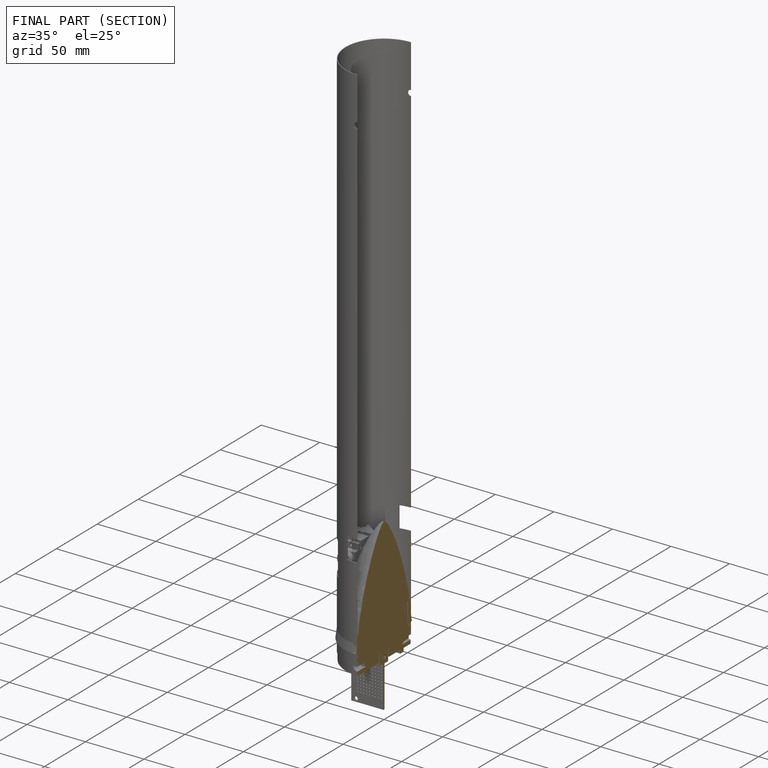
[diagram: finished part — half-section view (interior)]
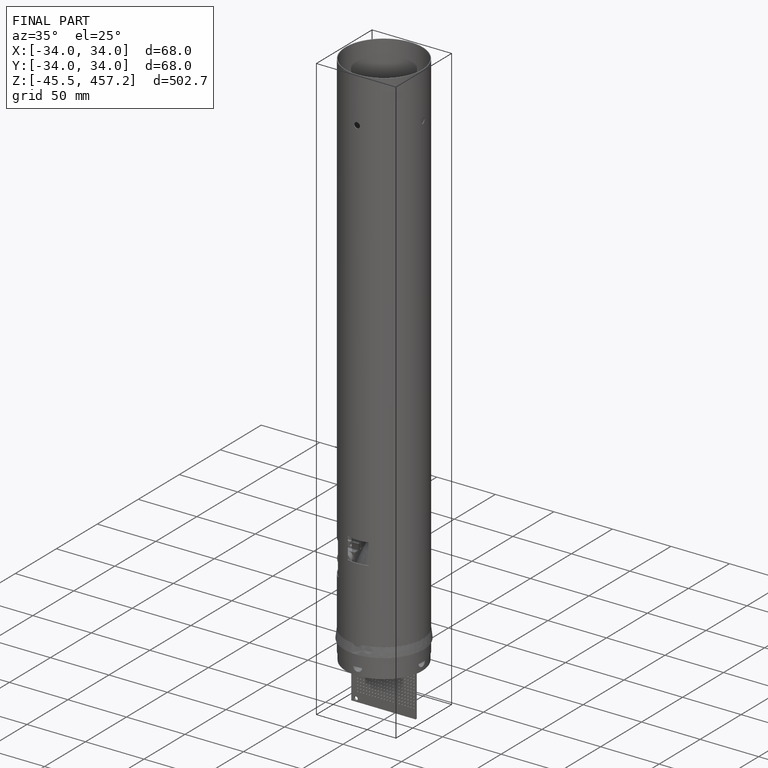
[diagram: finished part — iso view with bounding-box wireframe]
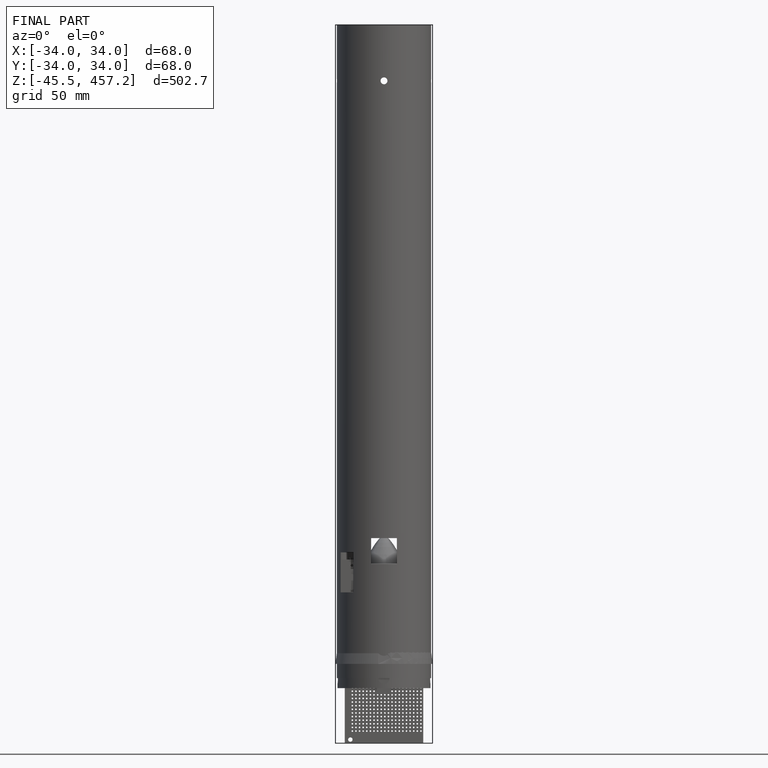
[diagram: finished part — front view with bounding-box wireframe]
